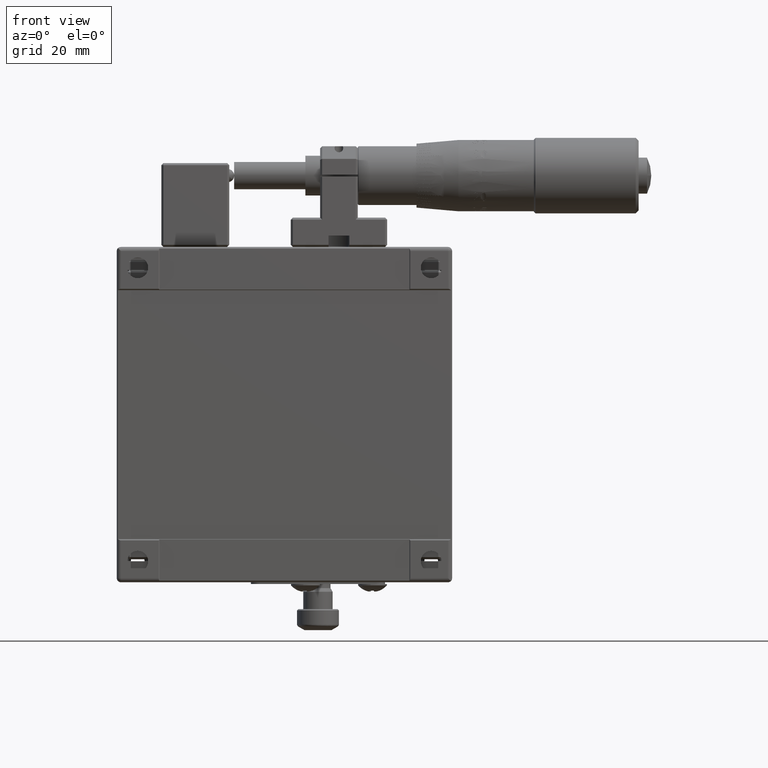
[diagram: clean part render]
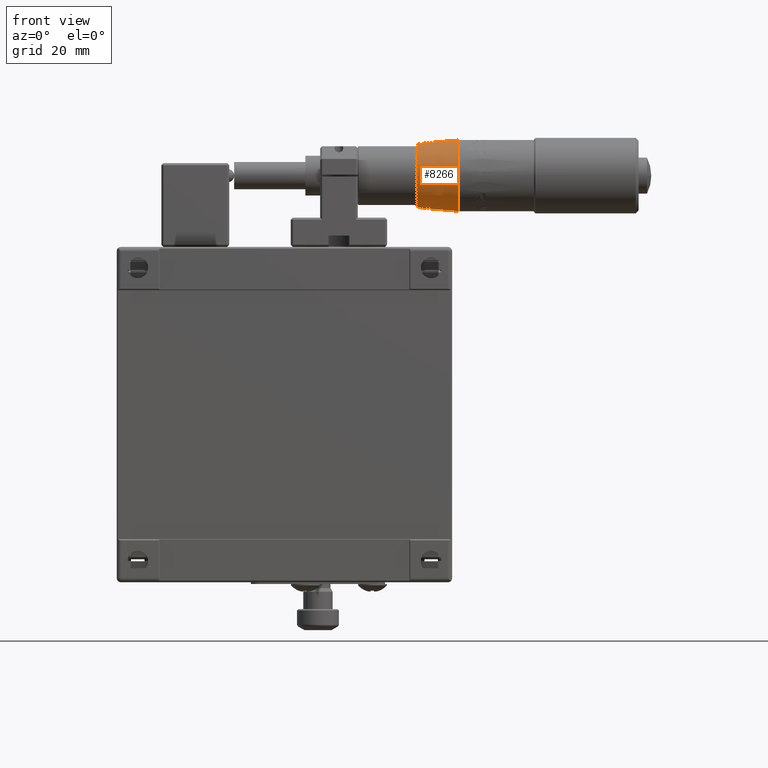
[diagram: same view with one face highlighted and labeled with its STEP entity id]
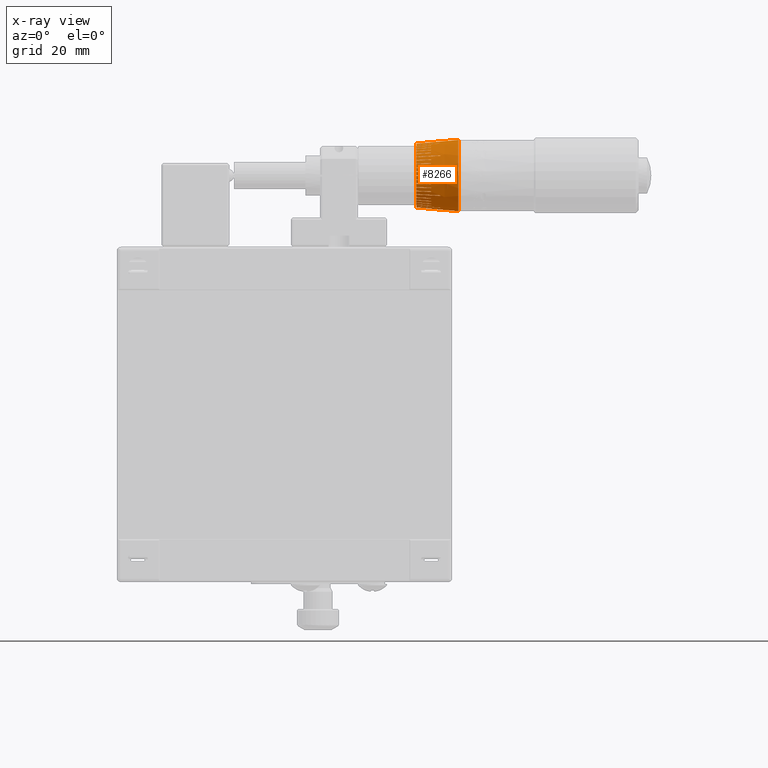
[diagram: x-ray of the same camera — body ghosted, the highlighted face saturated]
A machine part, front view. The second image highlights one B-rep face of the part: STEP entity #8266.
The next image is the same camera in x-ray: the body ghosted, the highlighted face saturated — about 0% of this face is hidden behind the body in this view.
In plain terms, the highlighted conical surface has half-angle 5 deg.
Its self-contained STEP definition (entity closure, byte-faithful):
#6 = ORIENTED_EDGE ( 'NONE', *, *, #55550, .F. ) ;
#76 = CIRCLE ( 'NONE', #5515, 7.625113364740747635 ) ;
#128 = CARTESIAN_POINT ( 'NONE',  ( 26.80988274706869845, -3.031142710643130123, 59.85341992282080525 ) ) ;
#132 = DIRECTION ( 'NONE',  ( -1.000000000000000000, 0.000000000000000000, 0.000000000000000000 ) ) ;
#208 = DIRECTION ( 'NONE',  ( 0.000000000000000000, 1.957526350271236043E-14, 1.000000000000000000 ) ) ;
#230 = B_SPLINE_CURVE_WITH_KNOTS ( 'NONE', 3,
 ( #30730, #41567, #21893, #31065 ),
 .UNSPECIFIED., .F., .F.,
 ( 4, 4 ),
 ( 2.007639978141285224E-07, 0.003513570747034499946 ),
 .UNSPECIFIED. ) ;
#234 = ORIENTED_EDGE ( 'NONE', *, *, #12241, .F. ) ;
#277 = AXIS2_PLACEMENT_3D ( 'NONE', #11388, #11728, #33073 ) ;
#318 = EDGE_CURVE ( 'NONE', #48219, #52053, #27868, .T. ) ;
#367 = VERTEX_POINT ( 'NONE', #46485 ) ;
#650 = B_SPLINE_CURVE_WITH_KNOTS ( 'NONE', 3,
 ( #20661, #1007, #51520, #5077 ),
 .UNSPECIFIED., .F., .F.,
 ( 4, 4 ),
 ( 2.007640002973089982E-07, 0.003513570747036984937 ),
 .UNSPECIFIED. ) ;
#660 = ORIENTED_EDGE ( 'NONE', *, *, #18280, .F. ) ;
#790 = EDGE_CURVE ( 'NONE', #12544, #20079, #76, .T. ) ;
#834 = DIRECTION ( 'NONE',  ( 0.000000000000000000, 0.000000000000000000, -1.000000000000000000 ) ) ;
#854 = CIRCLE ( 'NONE', #57165, 7.931323687081485829 ) ;
#862 = B_SPLINE_CURVE_WITH_KNOTS ( 'NONE', 3,
 ( #46299, #65617, #40857, #19173 ),
 .UNSPECIFIED., .F., .F.,
 ( 4, 4 ),
 ( 2.007640002971385064E-07, 0.003513570747036984937 ),
 .UNSPECIFIED. ) ;
#866 = CARTESIAN_POINT ( 'NONE',  ( 30.30988274706869845, -3.352668208135700212, 54.12683185788159790 ) ) ;
#875 = CARTESIAN_POINT ( 'NONE',  ( 29.29223279120009948, -3.802181730027174744, 56.95000000000000284 ) ) ;
#908 = VERTEX_POINT ( 'NONE', #40536 ) ;
#947 = CARTESIAN_POINT ( 'NONE',  ( 32.50988274706870129, -4.083691393580243911, 56.95000000000000284 ) ) ;
#1007 = CARTESIAN_POINT ( 'NONE',  ( 27.97654940637895038, -2.755378695788865073, 60.67870577538010224 ) ) ;
#1028 = ORIENTED_EDGE ( 'NONE', *, *, #25154, .F. ) ;
#1044 = ORIENTED_EDGE ( 'NONE', *, *, #35608, .T. ) ;
#1109 = DIRECTION ( 'NONE',  ( 0.000000000000000000, -7.283310331176776978E-14, 1.000000000000000000 ) ) ;
#1112 = EDGE_CURVE ( 'NONE', #53683, #13409, #42558, .T. ) ;
#1156 = CARTESIAN_POINT ( 'NONE',  ( 30.30988274706869845, 4.039949748743705271, 57.00000000000000000 ) ) ;
#1250 = VERTEX_POINT ( 'NONE', #56388 ) ;
#1293 = CARTESIAN_POINT ( 'NONE',  ( 26.80988274706869845, -2.099374659561770162, 61.52228367473040294 ) ) ;
#1381 = CARTESIAN_POINT ( 'NONE',  ( 26.80988274706869845, 3.611076549008624959, 64.61304286101800187 ) ) ;
#1587 = VERTEX_POINT ( 'NONE', #47426 ) ;
#1647 = ORIENTED_EDGE ( 'NONE', *, *, #13675, .T. ) ;
#1688 = ORIENTED_EDGE ( 'NONE', *, *, #8175, .T. ) ;
#1816 = DIRECTION ( 'NONE',  ( 1.000000000000000000, 0.000000000000000000, 0.000000000000000000 ) ) ;
#1938 = B_SPLINE_CURVE_WITH_KNOTS ( 'NONE', 3,
 ( #11072, #62247, #52434, #66649 ),
 .UNSPECIFIED., .F., .F.,
 ( 4, 4 ),
 ( 2.007639978140435015E-07, 0.003513570747034499946 ),
 .UNSPECIFIED. ) ;
#1946 = CIRCLE ( 'NONE', #37684, 7.625113364740747635 ) ;
#2024 = EDGE_CURVE ( 'NONE', #33389, #31634, #3992, .T. ) ;
#2133 = VERTEX_POINT ( 'NONE', #55390 ) ;
#2246 = VERTEX_POINT ( 'NONE', #57076 ) ;
#2268 = CARTESIAN_POINT ( 'NONE',  ( 27.97654940637895038, -1.558579322184104887, 62.32595879564090069 ) ) ;
#2276 = CARTESIAN_POINT ( 'NONE',  ( 30.30988274706869845, 2.504683059458250316, 64.78131426058800457 ) ) ;
#2311 = ORIENTED_EDGE ( 'NONE', *, *, #20042, .F. ) ;
#2356 = DIRECTION ( 'NONE',  ( 1.000000000000000000, 0.000000000000000000, 0.000000000000000000 ) ) ;
#2494 = ORIENTED_EDGE ( 'NONE', *, *, #29156, .F. ) ;
#2592 = EDGE_CURVE ( 'NONE', #5861, #50390, #43349, .T. ) ;
#2643 = VERTEX_POINT ( 'NONE', #48501 ) ;
#2651 = CARTESIAN_POINT ( 'NONE',  ( 26.80988274706869845, 1.636157967503560240, 49.76369300695510134 ) ) ;
#2657 = VERTEX_POINT ( 'NONE', #32927 ) ;
#2682 = DIRECTION ( 'NONE',  ( 1.000000000000000000, 0.000000000000000000, 0.000000000000000000 ) ) ;
#2693 = CARTESIAN_POINT ( 'NONE',  ( 27.97654940637895038, -2.755378695788920140, 53.32129422462000434 ) ) ;
#2746 = CARTESIAN_POINT ( 'NONE',  ( 27.97654940637895038, 0.7951852622954630467, 49.98709273707600431 ) ) ;
#2793 = CARTESIAN_POINT ( 'NONE',  ( 30.30988274706869845, -3.654478661303365072, 58.92397164010289856 ) ) ;
#2794 = B_SPLINE_CURVE_WITH_KNOTS ( 'NONE', 3,
 ( #46377, #20598, #41285, #9423 ),
 .UNSPECIFIED., .F., .F.,
 ( 4, 4 ),
 ( 2.007640002973749874E-07, 0.003513570747036984937 ),
 .UNSPECIFIED. ) ;
#2813 = ORIENTED_EDGE ( 'NONE', *, *, #60132, .F. ) ;
#2819 = CARTESIAN_POINT ( 'NONE',  ( 27.97654940637895038, -3.456747881160965097, 55.12679699533929778 ) ) ;
#3052 = AXIS2_PLACEMENT_3D ( 'NONE', #28121, #2356, #13178 ) ;
#3063 = CARTESIAN_POINT ( 'NONE',  ( 32.50988274706870129, 3.884234154406934980, 57.11313400155930253 ) ) ;
#3120 = ORIENTED_EDGE ( 'NONE', *, *, #56726, .T. ) ;
#3215 = CARTESIAN_POINT ( 'NONE',  ( 27.97654940637895038, -0.1426119370637830008, 50.50265111023710318 ) ) ;
#3228 = EDGE_CURVE ( 'NONE', #58667, #31945, #48495, .T. ) ;
#3294 = CIRCLE ( 'NONE', #45553, 7.931323687081485829 ) ;
#3356 = DIRECTION ( 'NONE',  ( 0.000000000000000000, -1.246692759390619511E-14, 1.000000000000000000 ) ) ;
#3467 = CARTESIAN_POINT ( 'NONE',  ( 26.80988274706869845, -3.067955165911639970, 54.23955772576820067 ) ) ;
#3644 = CARTESIAN_POINT ( 'NONE',  ( 26.80988274706869845, -3.333013380211859999, 58.94467697168699516 ) ) ;
#3774 = CARTESIAN_POINT ( 'NONE',  ( 27.97654940637895038, -0.1426119370636928230, 63.49734888976301050 ) ) ;
#3827 = EDGE_CURVE ( 'NONE', #11599, #56162, #49350, .T. ) ;
#3959 = CARTESIAN_POINT ( 'NONE',  ( 29.14321607332965058, 2.622038195624134538, 64.69978823384920474 ) ) ;
#3992 = CIRCLE ( 'NONE', #12650, 7.625113364740747635 ) ;
#4022 = B_SPLINE_CURVE_WITH_KNOTS ( 'NONE', 3,
 ( #11382, #58482, #52751, #47676 ),
 .UNSPECIFIED., .F., .F.,
 ( 4, 4 ),
 ( 2.007640002971639968E-07, 0.003513570747036984937 ),
 .UNSPECIFIED. ) ;
#4061 = CARTESIAN_POINT ( 'NONE',  ( 26.80988274706869845, 3.511273876165689867, 49.39323619093500639 ) ) ;
#4064 = VERTEX_POINT ( 'NONE', #53038 ) ;
#4101 = B_SPLINE_CURVE_WITH_KNOTS ( 'NONE', 3,
 ( #12167, #36619, #42366, #32550 ),
 .UNSPECIFIED., .F., .F.,
 ( 4, 4 ),
 ( 2.007640002970930048E-07, 0.003513570747036984937 ),
 .UNSPECIFIED. ) ;
#4120 = CIRCLE ( 'NONE', #3052, 7.625113364740747635 ) ;
#4126 = DIRECTION ( 'NONE',  ( -0.9961946980917455452, 0.02693260566639673476, -0.08289003707270474475 ) ) ;
#4131 = AXIS2_PLACEMENT_3D ( 'NONE', #46102, #45762, #46450 ) ;
#4138 = CARTESIAN_POINT ( 'NONE',  ( 26.80988274706869845, 4.039949748743705271, 57.00000000000000000 ) ) ;
#4146 = CIRCLE ( 'NONE', #12788, 8.500000000000000000 ) ;
#4226 = CARTESIAN_POINT ( 'NONE',  ( 26.80988274706869845, 4.039949748743705271, 57.00000000000000000 ) ) ;
#4530 = CARTESIAN_POINT ( 'NONE',  ( 29.14321607332965058, -2.796649891306569824, 53.18448989252339487 ) ) ;
#4631 = DIRECTION ( 'NONE',  ( -0.9961946980917455452, 0.02693260566639788661, 0.08289003707270445331 ) ) ;
#4634 = CARTESIAN_POINT ( 'NONE',  ( 26.80988274706869845, 3.511273876165800001, 64.60676380906508598 ) ) ;
#4689 = ORIENTED_EDGE ( 'NONE', *, *, #54107, .F. ) ;
#4741 = CARTESIAN_POINT ( 'NONE',  ( 30.30988274706869845, -3.834943382015894908, 57.94443295599800337 ) ) ;
#4784 = ORIENTED_EDGE ( 'NONE', *, *, #66509, .T. ) ;
#4826 = CARTESIAN_POINT ( 'NONE',  ( 32.50988274706870129, 3.884234154406934980, 56.88686599844069747 ) ) ;
#4844 = EDGE_CURVE ( 'NONE', #42229, #38940, #11421, .T. ) ;
#5055 = CARTESIAN_POINT ( 'NONE',  ( 26.80988274706869845, -0.7818502770508990452, 51.09300428843940267 ) ) ;
#5077 = CARTESIAN_POINT ( 'NONE',  ( 30.30988274706869845, -2.934271753652060166, 60.77705306618539538 ) ) ;
#5234 = CARTESIAN_POINT ( 'NONE',  ( 29.14321607332965058, -0.1128721717687266035, 50.36288601008670440 ) ) ;
#5310 = CARTESIAN_POINT ( 'NONE',  ( 30.30988274706869845, -3.315855752867235218, 54.03385420929280514 ) ) ;
#5394 = EDGE_CURVE ( 'NONE', #53683, #35838, #19615, .T. ) ;
#5427 = CARTESIAN_POINT ( 'NONE',  ( 30.30988274706869845, -2.405887659877689710, 61.62137160709639971 ) ) ;
#5458 = EDGE_CURVE ( 'NONE', #65519, #22618, #59674, .T. ) ;
#5515 = AXIS2_PLACEMENT_3D ( 'NONE', #59195, #33470, #60194 ) ;
#5559 = ORIENTED_EDGE ( 'NONE', *, *, #34715, .T. ) ;
#5631 = CARTESIAN_POINT ( 'NONE',  ( 30.30988274706869845, -3.891216333823209972, 56.95000000000000284 ) ) ;
#5650 = CARTESIAN_POINT ( 'NONE',  ( 26.80988274706869845, 4.039949748743705271, 57.00000000000000000 ) ) ;
#5651 = CARTESIAN_POINT ( 'NONE',  ( 27.97654940637895038, -3.126047136229145096, 54.10900475693100020 ) ) ;
#5820 = ORIENTED_EDGE ( 'NONE', *, *, #28373, .F. ) ;
#5861 = VERTEX_POINT ( 'NONE', #30628 ) ;
#5867 = CIRCLE ( 'NONE', #47002, 7.625113364740747635 ) ;
#5898 = DIRECTION ( 'NONE',  ( 0.000000000000000000, -0.9510565162951565288, -0.3090169943749382919 ) ) ;
#6167 = DIRECTION ( 'NONE',  ( 1.000000000000000000, 0.000000000000000000, 0.000000000000000000 ) ) ;
#6364 = LINE ( 'NONE', #947, #23827 ) ;
#6381 = EDGE_CURVE ( 'NONE', #56917, #49599, #10309, .T. ) ;
#6458 = EDGE_CURVE ( 'NONE', #2246, #1250, #46781, .T. ) ;
#6574 = CARTESIAN_POINT ( 'NONE',  ( 30.30988274706869845, 4.039949748743705271, 57.00000000000000000 ) ) ;
#6644 = CARTESIAN_POINT ( 'NONE',  ( 26.80988274706869845, 2.562062338178849874, 64.48052154778268630 ) ) ;
#6669 = ORIENTED_EDGE ( 'NONE', *, *, #12338, .T. ) ;
#6757 = DIRECTION ( 'NONE',  ( 0.000000000000000000, 0.000000000000000000, -1.000000000000000000 ) ) ;
#6823 = CARTESIAN_POINT ( 'NONE',  ( 27.97654940637890419, -3.632408770890610317, 57.91884688446069873 ) ) ;
#6926 = AXIS2_PLACEMENT_3D ( 'NONE', #10595, #57366, #22403 ) ;
#7065 = CARTESIAN_POINT ( 'NONE',  ( 26.80988274706869845, 0.7481628291742329351, 63.87797155426650164 ) ) ;
#7100 = CARTESIAN_POINT ( 'NONE',  ( 29.14321607332965058, -3.530744320091775190, 55.00455435185750019 ) ) ;
#7134 = AXIS2_PLACEMENT_3D ( 'NONE', #7695, #60207, #34487 ) ;
#7139 = DIRECTION ( 'NONE',  ( 0.000000000000000000, 0.000000000000000000, 1.000000000000000000 ) ) ;
#7146 = ORIENTED_EDGE ( 'NONE', *, *, #24620, .F. ) ;
#7208 = VERTEX_POINT ( 'NONE', #19700 ) ;
#7209 = EDGE_CURVE ( 'NONE', #8148, #41040, #65464, .T. ) ;
#7374 = ORIENTED_EDGE ( 'NONE', *, *, #19289, .F. ) ;
#7405 = ORIENTED_EDGE ( 'NONE', *, *, #19679, .T. ) ;
#7556 = DIRECTION ( 'NONE',  ( 1.000000000000000000, 0.000000000000000000, 0.000000000000000000 ) ) ;
#7668 = EDGE_CURVE ( 'NONE', #12801, #39988, #31107, .T. ) ;
#7695 = CARTESIAN_POINT ( 'NONE',  ( 26.80988274706869845, 4.039949748743705271, 57.00000000000000000 ) ) ;
#7857 = ORIENTED_EDGE ( 'NONE', *, *, #20810, .T. ) ;
#7963 = DIRECTION ( 'NONE',  ( 1.000000000000000000, 0.000000000000000000, 0.000000000000000000 ) ) ;
#8090 = EDGE_CURVE ( 'NONE', #53833, #47004, #65574, .T. ) ;
#8113 = EDGE_CURVE ( 'NONE', #59287, #11352, #30952, .T. ) ;
#8148 = VERTEX_POINT ( 'NONE', #14775 ) ;
#8175 = EDGE_CURVE ( 'NONE', #57840, #38843, #59088, .T. ) ;
#8266 = ADVANCED_FACE ( 'NONE', ( #17132 ), #27388, .T. ) ;
#8287 = AXIS2_PLACEMENT_3D ( 'NONE', #65705, #65040, #9096 ) ;
#8300 = CARTESIAN_POINT ( 'NONE',  ( 32.50988274706870129, -4.083691393580243911, 56.95000000000000284 ) ) ;
#8403 = EDGE_CURVE ( 'NONE', #11395, #61994, #40330, .T. ) ;
#8638 = CARTESIAN_POINT ( 'NONE',  ( 26.80988274706869845, -0.08791886301548129667, 50.58883360462380097 ) ) ;
#8776 = CARTESIAN_POINT ( 'NONE',  ( 26.80988274706869845, -2.099374659561770162, 61.52228367473040294 ) ) ;
#8838 = ORIENTED_EDGE ( 'NONE', *, *, #57273, .F. ) ;
#8905 = VERTEX_POINT ( 'NONE', #11480 ) ;
#9033 = B_SPLINE_CURVE_WITH_KNOTS ( 'NONE', 3,
 ( #27056, #28355, #11792, #12117 ),
 .UNSPECIFIED., .F., .F.,
 ( 4, 4 ),
 ( 2.007640002970290009E-07, 0.003513570747036984937 ),
 .UNSPECIFIED. ) ;
#9096 = DIRECTION ( 'NONE',  ( 0.000000000000000000, 7.108335908806163741E-15, 1.000000000000000000 ) ) ;
#9115 = VERTEX_POINT ( 'NONE', #62253 ) ;
#9213 = CARTESIAN_POINT ( 'NONE',  ( 29.14321607332965058, 2.523809470551159784, 49.31894989760949244 ) ) ;
#9265 = EDGE_CURVE ( 'NONE', #11395, #60574, #26179, .T. ) ;
#9336 = EDGE_CURVE ( 'NONE', #35122, #39307, #25220, .T. ) ;
#9423 = CARTESIAN_POINT ( 'NONE',  ( 30.30988274706869845, 3.492046373524735348, 64.91237621202910191 ) ) ;
#9697 = ORIENTED_EDGE ( 'NONE', *, *, #27366, .F. ) ;
#9716 = DIRECTION ( 'NONE',  ( 1.000000000000000000, 0.000000000000000000, 0.000000000000000000 ) ) ;
#9717 = CARTESIAN_POINT ( 'NONE',  ( 30.30988274706869845, 4.039949748743705271, 57.00000000000000000 ) ) ;
#9834 = DIRECTION ( 'NONE',  ( 0.000000000000000000, 0.000000000000000000, -1.000000000000000000 ) ) ;
#9853 = VERTEX_POINT ( 'NONE', #55798 ) ;
#9878 = CARTESIAN_POINT ( 'NONE',  ( 30.30988274706869845, -0.2519979499992870409, 63.66971366555679168 ) ) ;
#9885 = EDGE_CURVE ( 'NONE', #38940, #24405, #10052, .T. ) ;
#9897 = EDGE_CURVE ( 'NONE', #2246, #13989, #17677, .T. ) ;
#9913 = AXIS2_PLACEMENT_3D ( 'NONE', #3063, #44072, #48195 ) ;
#9933 = CARTESIAN_POINT ( 'NONE',  ( 29.14321607332965058, -1.701441474475194893, 51.67706482844879901 ) ) ;
#9945 = ORIENTED_EDGE ( 'NONE', *, *, #13213, .F. ) ;
#10028 = EDGE_CURVE ( 'NONE', #10861, #31634, #230, .T. ) ;
#10052 = LINE ( 'NONE', #14445, #64238 ) ;
#10055 = CARTESIAN_POINT ( 'NONE',  ( 26.80988274706869845, 4.039949748743705271, 57.00000000000000000 ) ) ;
#10063 = EDGE_CURVE ( 'NONE', #43803, #7208, #59996, .T. ) ;
#10086 = VERTEX_POINT ( 'NONE', #61899 ) ;
#10099 = AXIS2_PLACEMENT_3D ( 'NONE', #58502, #27655, #57836 ) ;
#10137 = CARTESIAN_POINT ( 'NONE',  ( 30.30988274706869845, 0.7082648254467009963, 49.80237740631430654 ) ) ;
#10151 = DIRECTION ( 'NONE',  ( -0.9961946980917455452, 0.02693260566639673476, -0.08289003707270474475 ) ) ;
#10309 = CIRCLE ( 'NONE', #36304, 7.931323687081485829 ) ;
#10312 = CARTESIAN_POINT ( 'NONE',  ( 26.80988274706869845, -0.003486070465281640007, 50.53525092512590078 ) ) ;
#10359 = VERTEX_POINT ( 'NONE', #58738 ) ;
#10420 = EDGE_CURVE ( 'NONE', #35122, #61994, #34939, .T. ) ;
#10510 = CARTESIAN_POINT ( 'NONE',  ( 29.14321607332965058, -2.323309566913289714, 61.56137511067620238 ) ) ;
#10572 = ORIENTED_EDGE ( 'NONE', *, *, #7209, .T. ) ;
#10582 = EDGE_CURVE ( 'NONE', #12428, #4064, #62004, .T. ) ;
#10595 = CARTESIAN_POINT ( 'NONE',  ( 26.80988274706869845, 4.039949748743705271, 57.00000000000000000 ) ) ;
#10608 = CARTESIAN_POINT ( 'NONE',  ( 26.80988274706869845, -1.552626527418884850, 51.81681136553459766 ) ) ;
#10697 = ORIENTED_EDGE ( 'NONE', *, *, #53008, .F. ) ;
#10729 = CARTESIAN_POINT ( 'NONE',  ( 32.50988274706870129, 1.482053753747303748, 49.28940900526820457 ) ) ;
#10730 = EDGE_CURVE ( 'NONE', #64194, #39254, #40552, .T. ) ;
#10822 = ORIENTED_EDGE ( 'NONE', *, *, #17759, .F. ) ;
#10861 = VERTEX_POINT ( 'NONE', #18632 ) ;
#11060 = ORIENTED_EDGE ( 'NONE', *, *, #37600, .T. ) ;
#11070 = CARTESIAN_POINT ( 'NONE',  ( 29.14321607332965058, -3.220951480618774898, 54.07142946883060119 ) ) ;
#11072 = CARTESIAN_POINT ( 'NONE',  ( 30.30988274706869845, 1.636637469835184877, 64.55843803436320627 ) ) ;
#11087 = CARTESIAN_POINT ( 'NONE',  ( 26.80988274706869845, -0.003486070465192305217, 63.46474907487420580 ) ) ;
#11273 = ORIENTED_EDGE ( 'NONE', *, *, #29867, .T. ) ;
#11352 = VERTEX_POINT ( 'NONE', #51347 ) ;
#11382 = CARTESIAN_POINT ( 'NONE',  ( 26.80988274706869845, -3.518608016842290187, 55.99473469698409644 ) ) ;
#11388 = CARTESIAN_POINT ( 'NONE',  ( 26.80988274706869845, 4.039949748743705271, 57.00000000000000000 ) ) ;
#11395 = VERTEX_POINT ( 'NONE', #26245 ) ;
#11421 = CIRCLE ( 'NONE', #34152, 7.931323687081487606 ) ;
#11480 = CARTESIAN_POINT ( 'NONE',  ( 26.80988274706869845, 4.039949748743705271, 49.37488663525930122 ) ) ;
#11504 = CARTESIAN_POINT ( 'NONE',  ( 26.80988274706869845, 4.039949748743705271, 57.00000000000000000 ) ) ;
#11505 = CARTESIAN_POINT ( 'NONE',  ( 30.30988274706869845, -3.891216333823209972, 56.95000000000000284 ) ) ;
#11599 = VERTEX_POINT ( 'NONE', #51600 ) ;
#11728 = DIRECTION ( 'NONE',  ( 1.000000000000000000, 0.000000000000000000, 0.000000000000000000 ) ) ;
#11742 = CARTESIAN_POINT ( 'NONE',  ( 26.80988274706869845, 1.731263619133074805, 49.73279130751760135 ) ) ;
#11748 = CIRCLE ( 'NONE', #17151, 7.625113364740747635 ) ;
#11752 = CARTESIAN_POINT ( 'NONE',  ( 27.97654940637895038, -0.05817914451349059934, 63.55093156926091069 ) ) ;
#11792 = CARTESIAN_POINT ( 'NONE',  ( 29.14321607332965058, -2.264531041684109791, 52.35772318988639995 ) ) ;
#11844 = CARTESIAN_POINT ( 'NONE',  ( 30.30988274706869845, -2.886096386241940426, 53.13531626581029599 ) ) ;
#11852 = DIRECTION ( 'NONE',  ( 1.000000000000000000, 0.000000000000000000, 0.000000000000000000 ) ) ;
#11948 = VERTEX_POINT ( 'NONE', #47457 ) ;
#11998 = CARTESIAN_POINT ( 'NONE',  ( 26.80988274706869845, 4.039949748743705271, 57.00000000000000000 ) ) ;
#12083 = CARTESIAN_POINT ( 'NONE',  ( 26.80988274706869845, -0.7818502770508160005, 62.90699571156068970 ) ) ;
#12090 = VERTEX_POINT ( 'NONE', #3644 ) ;
#12099 = VERTEX_POINT ( 'NONE', #15483 ) ;
#12117 = CARTESIAN_POINT ( 'NONE',  ( 30.30988274706869845, -2.347109134648509787, 52.29772669346619551 ) ) ;
#12167 = CARTESIAN_POINT ( 'NONE',  ( 26.80988274706869845, -1.484171816826020063, 51.74391450279250648 ) ) ;
#12241 = EDGE_CURVE ( 'NONE', #56917, #34045, #66239, .T. ) ;
#12268 = EDGE_CURVE ( 'NONE', #66828, #12099, #44392, .T. ) ;
#12328 = CARTESIAN_POINT ( 'NONE',  ( 27.97654940637895038, -0.9239649348500039716, 51.07809862756130315 ) ) ;
#12338 = EDGE_CURVE ( 'NONE', #10359, #58944, #49129, .T. ) ;
#12416 = CARTESIAN_POINT ( 'NONE',  ( 26.80988274706869845, 2.660291063251615462, 49.50074032075870178 ) ) ;
#12428 = VERTEX_POINT ( 'NONE', #38090 ) ;
#12433 = CARTESIAN_POINT ( 'NONE',  ( 30.30988274706869845, -1.707394149019869856, 62.46570521983210256 ) ) ;
#12495 = VERTEX_POINT ( 'NONE', #33339 ) ;
#12544 = VERTEX_POINT ( 'NONE', #61064 ) ;
#12650 = AXIS2_PLACEMENT_3D ( 'NONE', #38474, #29293, #59126 ) ;
#12660 = CARTESIAN_POINT ( 'NONE',  ( 30.30988274706869845, -3.654478661303394826, 55.07602835989720091 ) ) ;
#12677 = DIRECTION ( 'NONE',  ( 0.000000000000000000, 0.000000000000000000, -1.000000000000000000 ) ) ;
#12704 = VERTEX_POINT ( 'NONE', #55652 ) ;
#12788 = AXIS2_PLACEMENT_3D ( 'NONE', #54653, #7556, #27907 ) ;
#12801 = VERTEX_POINT ( 'NONE', #36338 ) ;
#12850 = CARTESIAN_POINT ( 'NONE',  ( 29.14321607332965058, -3.721142791585810183, 58.03085139522309532 ) ) ;
#13029 = AXIS2_PLACEMENT_3D ( 'NONE', #28145, #23357, #7139 ) ;
#13178 = DIRECTION ( 'NONE',  ( 0.000000000000000000, 0.000000000000000000, -1.000000000000000000 ) ) ;
#13213 = EDGE_CURVE ( 'NONE', #45513, #22618, #54897, .T. ) ;
#13225 = CARTESIAN_POINT ( 'NONE',  ( 26.80988274706869845, -3.584999682245850305, 56.95000000000000284 ) ) ;
#13409 = VERTEX_POINT ( 'NONE', #32699 ) ;
#13411 = ORIENTED_EDGE ( 'NONE', *, *, #31407, .F. ) ;
#13420 = CARTESIAN_POINT ( 'NONE',  ( 26.80988274706869845, -1.484171816825943901, 62.25608549720760720 ) ) ;
#13499 = ORIENTED_EDGE ( 'NONE', *, *, #790, .T. ) ;
#13557 = DIRECTION ( 'NONE',  ( -0.9961946980917455452, 0.08715574274765836016, -6.086052987529215479E-16 ) ) ;
#13604 = EDGE_CURVE ( 'NONE', #16157, #37043, #43618, .T. ) ;
#13622 = EDGE_CURVE ( 'NONE', #10359, #46335, #65347, .T. ) ;
#13625 = DIRECTION ( 'NONE',  ( 0.000000000000000000, 0.000000000000000000, 1.000000000000000000 ) ) ;
#13675 = EDGE_CURVE ( 'NONE', #65203, #39249, #32228, .T. ) ;
#13942 = EDGE_CURVE ( 'NONE', #63537, #8905, #1946, .T. ) ;
#13989 = VERTEX_POINT ( 'NONE', #4741 ) ;
#14014 = DIRECTION ( 'NONE',  ( 1.000000000000000000, 0.000000000000000000, 0.000000000000000000 ) ) ;
#14129 = EDGE_CURVE ( 'NONE', #2133, #32468, #650, .T. ) ;
#14216 = EDGE_CURVE ( 'NONE', #53532, #36174, #854, .T. ) ;
#14232 = CARTESIAN_POINT ( 'NONE',  ( 30.30988274706869845, -3.654478661303365072, 58.92397164010289856 ) ) ;
#14309 = CARTESIAN_POINT ( 'NONE',  ( 26.80988274706869845, -3.357882368928344796, 58.84781865557419422 ) ) ;
#14438 = CIRCLE ( 'NONE', #6926, 7.625113364740747635 ) ;
#14445 = CARTESIAN_POINT ( 'NONE',  ( 32.50988274706870129, 1.482053753747303748, 49.28940900526820457 ) ) ;
#14609 = CARTESIAN_POINT ( 'NONE',  ( 26.80988274706869845, 4.039949748743705271, 57.00000000000000000 ) ) ;
#14729 = ORIENTED_EDGE ( 'NONE', *, *, #18826, .F. ) ;
#14745 = ORIENTED_EDGE ( 'NONE', *, *, #48685, .T. ) ;
#14775 = CARTESIAN_POINT ( 'NONE',  ( 30.30988274706869845, -3.629609672586880276, 59.02082995621580608 ) ) ;
#14874 = ORIENTED_EDGE ( 'NONE', *, *, #46938, .F. ) ;
#14906 = ORIENTED_EDGE ( 'NONE', *, *, #10730, .F. ) ;
#14974 = CARTESIAN_POINT ( 'NONE',  ( 30.30988274706869845, 4.039949748743705271, 57.00000000000000000 ) ) ;
#15026 = EDGE_CURVE ( 'NONE', #11599, #30078, #16593, .T. ) ;
#15055 = CIRCLE ( 'NONE', #62706, 7.625113364740747635 ) ;
#15099 = DIRECTION ( 'NONE',  ( 1.000000000000000000, 0.000000000000000000, 0.000000000000000000 ) ) ;
#15217 = ORIENTED_EDGE ( 'NONE', *, *, #10420, .F. ) ;
#15334 = VERTEX_POINT ( 'NONE', #41940 ) ;
#15483 = CARTESIAN_POINT ( 'NONE',  ( 30.30988274706869845, -0.1675651574491794915, 50.27670365494540050 ) ) ;
#15496 = CARTESIAN_POINT ( 'NONE',  ( 26.80988274706869845, 4.039949748743705271, 57.00000000000000000 ) ) ;
#15598 = ORIENTED_EDGE ( 'NONE', *, *, #40556, .F. ) ;
#15771 = CARTESIAN_POINT ( 'NONE',  ( 28.27458284049854953, -3.713147067172830162, 56.95000000000000284 ) ) ;
#15892 = CARTESIAN_POINT ( 'NONE',  ( 32.50988274706870129, 1.577159405376930001, 64.74149269416939489 ) ) ;
#15913 = CARTESIAN_POINT ( 'NONE',  ( 36.80988274706869845, 4.039949748743709712, 65.50000000000000000 ) ) ;
#15995 = ORIENTED_EDGE ( 'NONE', *, *, #6458, .F. ) ;
#15997 = DIRECTION ( 'NONE',  ( 0.000000000000000000, 0.5877852522924688072, -0.8090169943749505599 ) ) ;
#16001 = CARTESIAN_POINT ( 'NONE',  ( 32.50988274706870129, -2.561603254214460001, 61.73450560865570225 ) ) ;
#16157 = VERTEX_POINT ( 'NONE', #64517 ) ;
#16271 = CARTESIAN_POINT ( 'NONE',  ( 30.30988274706869845, 0.6177821202001990697, 64.15504466452929933 ) ) ;
#16310 = DIRECTION ( 'NONE',  ( -0.9961946980917455452, 0.07051047704022696261, 0.05122886023966997243 ) ) ;
#16315 = LINE ( 'NONE', #26828, #59342 ) ;
#16320 = CARTESIAN_POINT ( 'NONE',  ( 26.80988274706869845, -3.031142710643174976, 54.14658007717929422 ) ) ;
#16357 = B_SPLINE_CURVE_WITH_KNOTS ( 'NONE', 3,
 ( #29736, #29406, #35512, #56167 ),
 .UNSPECIFIED., .F., .F.,
 ( 4, 4 ),
 ( 2.007639978136825066E-07, 0.003513570747034499946 ),
 .UNSPECIFIED. ) ;
#16576 = VERTEX_POINT ( 'NONE', #21779 ) ;
#16580 = CARTESIAN_POINT ( 'NONE',  ( 32.50988274706870129, 3.847474688986674884, 57.00000000000000000 ) ) ;
#16593 = LINE ( 'NONE', #15913, #39080 ) ;
#16691 = ORIENTED_EDGE ( 'NONE', *, *, #21776, .F. ) ;
#16720 = ORIENTED_EDGE ( 'NONE', *, *, #13604, .F. ) ;
#16753 = CARTESIAN_POINT ( 'NONE',  ( 29.14321607332965058, -0.9890282127060000539, 50.99945063499640696 ) ) ;
#16776 = B_SPLINE_CURVE_WITH_KNOTS ( 'NONE', 3,
 ( #34993, #24443, #65485, #61055 ),
 .UNSPECIFIED., .F., .F.,
 ( 4, 4 ),
 ( 2.007640002973749874E-07, 0.003513570747036984937 ),
 .UNSPECIFIED. ) ;
#16842 = VECTOR ( 'NONE', #32077, 999.9999999999998863 ) ;
#16926 = ORIENTED_EDGE ( 'NONE', *, *, #51945, .T. ) ;
#16939 = ORIENTED_EDGE ( 'NONE', *, *, #20997, .F. ) ;
#17061 = DIRECTION ( 'NONE',  ( 1.000000000000000000, 0.000000000000000000, 0.000000000000000000 ) ) ;
#17132 = FACE_OUTER_BOUND ( 'NONE', #23276, .T. ) ;
#17138 = ORIENTED_EDGE ( 'NONE', *, *, #6381, .T. ) ;
#17151 = AXIS2_PLACEMENT_3D ( 'NONE', #11504, #37287, #6757 ) ;
#17177 = CARTESIAN_POINT ( 'NONE',  ( 30.30988274706869845, 1.541531818205559956, 49.47246366507440030 ) ) ;
#17323 = CARTESIAN_POINT ( 'NONE',  ( 26.80988274706869845, 4.039949748743705271, 57.00000000000000000 ) ) ;
#17346 = ORIENTED_EDGE ( 'NONE', *, *, #19369, .T. ) ;
#17455 = CARTESIAN_POINT ( 'NONE',  ( 29.14321607332965058, 2.523809470551265033, 64.68105010239059993 ) ) ;
#17497 = CARTESIAN_POINT ( 'NONE',  ( 29.14321607332965058, -3.733676114942254820, 56.06836007490849738 ) ) ;
#17677 = CIRCLE ( 'NONE', #43668, 7.931323687081485829 ) ;
#17701 = B_SPLINE_CURVE_WITH_KNOTS ( 'NONE', 3,
 ( #65389, #39618, #55217, #8776 ),
 .UNSPECIFIED., .F., .F.,
 ( 4, 4 ),
 ( 2.007639978139745212E-07, 0.003513570747034499946 ),
 .UNSPECIFIED. ) ;
#17720 = CARTESIAN_POINT ( 'NONE',  ( 26.80988274706869845, 0.8386455344208350038, 63.92054948342300236 ) ) ;
#17729 = CARTESIAN_POINT ( 'NONE',  ( 26.80988274706869845, 4.039949748743705271, 57.00000000000000000 ) ) ;
#17752 = B_SPLINE_CURVE_WITH_KNOTS ( 'NONE', 3,
 ( #41915, #57519, #11752, #11087 ),
 .UNSPECIFIED., .F., .F.,
 ( 4, 4 ),
 ( 2.007639978100355004E-07, 0.003513570747034499946 ),
 .UNSPECIFIED. ) ;
#17759 = EDGE_CURVE ( 'NONE', #53833, #51332, #29294, .T. ) ;
#17791 = CARTESIAN_POINT ( 'NONE',  ( 29.14321607332965058, -0.1973049643189274671, 50.41646868958459748 ) ) ;
#17949 = CARTESIAN_POINT ( 'NONE',  ( 26.80988274706869845, -3.031142710643130123, 59.85341992282080525 ) ) ;
#18038 = CARTESIAN_POINT ( 'NONE',  ( 26.80988274706869845, 0.7481628291741369008, 50.12202844573349836 ) ) ;
#18079 = CARTESIAN_POINT ( 'NONE',  ( 26.80988274706869845, 4.039949748743705271, 57.00000000000000000 ) ) ;
#18147 = CIRCLE ( 'NONE', #4131, 7.931323687081485829 ) ;
#18232 = EDGE_CURVE ( 'NONE', #53532, #30225, #6364, .T. ) ;
#18269 = CARTESIAN_POINT ( 'NONE',  ( 30.30988274706869845, 4.039949748743705271, 57.00000000000000000 ) ) ;
#18280 = EDGE_CURVE ( 'NONE', #35838, #31908, #42955, .T. ) ;
#18370 = EDGE_CURVE ( 'NONE', #66495, #64666, #24883, .T. ) ;
#18384 = ORIENTED_EDGE ( 'NONE', *, *, #36932, .T. ) ;
#18389 = CARTESIAN_POINT ( 'NONE',  ( 30.30988274706869845, -0.9770401168268240122, 50.85706030324060123 ) ) ;
#18427 = DIRECTION ( 'NONE',  ( 0.000000000000000000, 0.000000000000000000, -1.000000000000000000 ) ) ;
#18609 = CARTESIAN_POINT ( 'NONE',  ( 30.30988274706869845, -3.822410058659464926, 58.04364442612939712 ) ) ;
#18632 = CARTESIAN_POINT ( 'NONE',  ( 30.30988274706869845, -2.886096386241885359, 60.86468373418979638 ) ) ;
#18826 = EDGE_CURVE ( 'NONE', #2643, #56162, #16357, .T. ) ;
#18872 = CARTESIAN_POINT ( 'NONE',  ( 27.97654940637895038, -3.431878892444450102, 58.97006132077380158 ) ) ;
#18873 = ORIENTED_EDGE ( 'NONE', *, *, #9885, .F. ) ;
#18965 = VERTEX_POINT ( 'NONE', #40578 ) ;
#18976 = CARTESIAN_POINT ( 'NONE',  ( 26.80988274706869845, 4.039949748743705271, 57.00000000000000000 ) ) ;
#18997 = B_SPLINE_CURVE_WITH_KNOTS ( 'NONE', 3,
 ( #30743, #51422, #32449, #52778 ),
 .UNSPECIFIED., .F., .F.,
 ( 4, 4 ),
 ( 2.007640002969924991E-07, 0.003513570747036984937 ),
 .UNSPECIFIED. ) ;
#19132 = DIRECTION ( 'NONE',  ( 0.000000000000000000, 0.000000000000000000, -1.000000000000000000 ) ) ;
#19136 = ORIENTED_EDGE ( 'NONE', *, *, #41798, .T. ) ;
#19173 = CARTESIAN_POINT ( 'NONE',  ( 30.30988274706869845, -3.352668208135660244, 59.87316814211850158 ) ) ;
#19186 = ORIENTED_EDGE ( 'NONE', *, *, #44310, .F. ) ;
#19289 = EDGE_CURVE ( 'NONE', #49140, #25057, #46122, .T. ) ;
#19369 = EDGE_CURVE ( 'NONE', #42229, #60574, #27260, .T. ) ;
#19400 = CARTESIAN_POINT ( 'NONE',  ( 27.97654940637895038, -3.456747881160934899, 58.87320300466089407 ) ) ;
#19424 = ORIENTED_EDGE ( 'NONE', *, *, #63549, .T. ) ;
#19515 = ORIENTED_EDGE ( 'NONE', *, *, #22279, .F. ) ;
#19517 = AXIS2_PLACEMENT_3D ( 'NONE', #34404, #132, #5898 ) ;
#19571 = VECTOR ( 'NONE', #21151, 999.9999999999998863 ) ;
#19572 = ORIENTED_EDGE ( 'NONE', *, *, #27726, .T. ) ;
#19615 = CIRCLE ( 'NONE', #9913, 7.931323687081487606 ) ;
#19622 = CARTESIAN_POINT ( 'NONE',  ( 26.80988274706869845, -2.665932056334205047, 53.37046793078320661 ) ) ;
#19679 = EDGE_CURVE ( 'NONE', #64194, #51774, #48818, .T. ) ;
#19700 = CARTESIAN_POINT ( 'NONE',  ( 30.30988274706869845, -3.315855752867235218, 54.03385420929280514 ) ) ;
#19759 = ORIENTED_EDGE ( 'NONE', *, *, #2592, .T. ) ;
#19774 = CARTESIAN_POINT ( 'NONE',  ( 26.80988274706869845, -1.484171816825943901, 62.25608549720760720 ) ) ;
#19913 = EDGE_CURVE ( 'NONE', #18965, #64666, #25806, .T. ) ;
#19955 = EDGE_CURVE ( 'NONE', #24405, #47004, #21015, .T. ) ;
#20015 = AXIS2_PLACEMENT_3D ( 'NONE', #50560, #23772, #65476 ) ;
#20042 = EDGE_CURVE ( 'NONE', #57840, #20079, #17752, .T. ) ;
#20079 = VERTEX_POINT ( 'NONE', #62613 ) ;
#20101 = B_SPLINE_CURVE_WITH_KNOTS ( 'NONE', 3,
 ( #52227, #46465, #36285, #26107 ),
 .UNSPECIFIED., .F., .F.,
 ( 4, 4 ),
 ( 2.007639978139745212E-07, 0.003513570747034499946 ),
 .UNSPECIFIED. ) ;
#20173 = AXIS2_PLACEMENT_3D ( 'NONE', #4138, #55653, #50923 ) ;
#20195 = CARTESIAN_POINT ( 'NONE',  ( 30.30988274706869845, -0.2519979499992870409, 63.66971366555679168 ) ) ;
#20382 = ORIENTED_EDGE ( 'NONE', *, *, #19955, .F. ) ;
#20391 = LINE ( 'NONE', #41406, #43098 ) ;
#20555 = CARTESIAN_POINT ( 'NONE',  ( 26.80988274706869845, 4.039949748743705271, 57.00000000000000000 ) ) ;
#20598 = CARTESIAN_POINT ( 'NONE',  ( 27.97654940637895038, 3.504864703339189980, 64.70863469396968526 ) ) ;
#20610 = CARTESIAN_POINT ( 'NONE',  ( 27.10791617924850172, -3.611074788069215113, 57.04999999999999716 ) ) ;
#20661 = CARTESIAN_POINT ( 'NONE',  ( 26.80988274706869845, -2.665932056334154865, 60.62953206921689997 ) ) ;
#20810 = EDGE_CURVE ( 'NONE', #2643, #37956, #56978, .T. ) ;
#20864 = CARTESIAN_POINT ( 'NONE',  ( 30.30988274706869845, -3.822410058659474696, 55.95635557387070236 ) ) ;
#20940 = CARTESIAN_POINT ( 'NONE',  ( 26.80988274706869845, -3.584999682245850305, 57.04999999999999716 ) ) ;
#20997 = EDGE_CURVE ( 'NONE', #33389, #13409, #55758, .T. ) ;
#21015 = B_SPLINE_CURVE_WITH_KNOTS ( 'NONE', 3,
 ( #29726, #50411, #24623, #66002 ),
 .UNSPECIFIED., .F., .F.,
 ( 4, 4 ),
 ( 2.007639978105875012E-07, 0.003513570747034499946 ),
 .UNSPECIFIED. ) ;
#21151 = DIRECTION ( 'NONE',  ( -0.9961946980917455452, 0.02693260566639788661, 0.08289003707270445331 ) ) ;
#21244 = VERTEX_POINT ( 'NONE', #24482 ) ;
#21284 = CARTESIAN_POINT ( 'NONE',  ( 30.30988274706869845, 3.492046373524735348, 64.91237621202910191 ) ) ;
#21286 = EDGE_CURVE ( 'NONE', #12801, #57856, #26697, .T. ) ;
#21513 = CARTESIAN_POINT ( 'NONE',  ( 30.30988274706869845, -0.2519979499993790228, 50.33028633444330069 ) ) ;
#21702 = CARTESIAN_POINT ( 'NONE',  ( 30.30988274706869845, 1.541531818205664983, 64.52753633492569918 ) ) ;
#21726 = AXIS2_PLACEMENT_3D ( 'NONE', #26887, #32664, #39048 ) ;
#21761 = DIRECTION ( 'NONE',  ( 0.000000000000000000, -8.617490301752703265E-14, 1.000000000000000000 ) ) ;
#21776 = EDGE_CURVE ( 'NONE', #45728, #11948, #20101, .T. ) ;
#21779 = CARTESIAN_POINT ( 'NONE',  ( 26.80988274706869845, -3.067955165911600446, 59.76044227423200539 ) ) ;
#21827 = DIRECTION ( 'NONE',  ( 0.000000000000000000, 1.957526350271236043E-14, 1.000000000000000000 ) ) ;
#21893 = CARTESIAN_POINT ( 'NONE',  ( 27.97654940637895038, -2.707203328378695151, 60.76633644338450324 ) ) ;
#22195 = CARTESIAN_POINT ( 'NONE',  ( 26.95889946309619845, -3.598037235870944706, 56.95000000000000284 ) ) ;
#22279 = EDGE_CURVE ( 'NONE', #65519, #39249, #45885, .T. ) ;
#22346 = CARTESIAN_POINT ( 'NONE',  ( 26.80988274706869845, -3.333013380211889753, 55.05532302831310432 ) ) ;
#22403 = DIRECTION ( 'NONE',  ( 0.000000000000000000, 0.000000000000000000, -1.000000000000000000 ) ) ;
#22415 = AXIS2_PLACEMENT_3D ( 'NONE', #15496, #24648, #61596 ) ;
#22457 = AXIS2_PLACEMENT_3D ( 'NONE', #55662, #6167, #21761 ) ;
#22473 = DIRECTION ( 'NONE',  ( 0.000000000000000000, 9.590785526189239811E-14, 1.000000000000000000 ) ) ;
#22478 = CIRCLE ( 'NONE', #53898, 7.625113364740747635 ) ;
#22531 = ORIENTED_EDGE ( 'NONE', *, *, #7668, .F. ) ;
#22618 = VERTEX_POINT ( 'NONE', #47873 ) ;
#22704 = CARTESIAN_POINT ( 'NONE',  ( 32.50988274706870129, -2.502824728985284963, 52.18459269190690009 ) ) ;
#22834 = ORIENTED_EDGE ( 'NONE', *, *, #49286, .T. ) ;
#22850 = AXIS2_PLACEMENT_3D ( 'NONE', #14974, #65843, #13625 ) ;
#22884 = DIRECTION ( 'NONE',  ( -1.000000000000000000, 0.000000000000000000, 0.000000000000000000 ) ) ;
#23260 = EDGE_CURVE ( 'NONE', #49140, #46335, #45268, .T. ) ;
#23276 = EDGE_LOOP ( 'NONE', ( #49396, #41129, #14729, #7857, #1028, #59600, #39754, #40546, #36236, #37627, #8838, #36528, #32371, #62815, #7374, #61218, #34032, #6669, #15598, #13499, #2311, #1688, #51562, #19572, #234, #17138, #43993, #39753, #44620, #30703, #19186, #1044, #34287, #660, #45947, #40723, #16939, #61897, #46093, #24003, #63039, #11060, #14906, #7405, #2813, #3120, #30189, #10572, #10697, #4784, #15995, #42082, #2494, #19424, #59721, #4689, #51353, #31099, #29894, #11273, #7146, #50188, #51816, #63644, #42173, #19136, #13411, #37757, #24708, #57883, #56394, #18384, #22531, #46002, #6, #61339, #16691, #5820, #66683, #59116, #9697, #22834, #33679, #19759, #14874, #14745, #23740, #1647, #19515, #51065, #9945, #5559, #60043, #31368, #16720, #16926, #10822, #66752, #20382, #18873, #50465, #17346, #37960, #33707, #15217, #47069, #32405, #48420, #64021, #44659, #63946, #38036, #52041, #47044 ) ) ;
#23310 = DIRECTION ( 'NONE',  ( 0.000000000000000000, 0.000000000000000000, -1.000000000000000000 ) ) ;
#23357 = DIRECTION ( 'NONE',  ( 1.000000000000000000, 0.000000000000000000, 0.000000000000000000 ) ) ;
#23405 = CARTESIAN_POINT ( 'NONE',  ( 29.14321607332965058, 0.7517250273530190485, 49.89473503659250042 ) ) ;
#23498 = CIRCLE ( 'NONE', #61411, 7.625113364740747635 ) ;
#23740 = ORIENTED_EDGE ( 'NONE', *, *, #45563, .F. ) ;
#23744 = CARTESIAN_POINT ( 'NONE',  ( 26.80988274706869845, 4.039949748743705271, 57.00000000000000000 ) ) ;
#23772 = DIRECTION ( 'NONE',  ( 1.000000000000000000, 0.000000000000000000, 0.000000000000000000 ) ) ;
#23804 = CARTESIAN_POINT ( 'NONE',  ( 29.14321607332965058, -0.9119768884284219501, 50.93570823602160402 ) ) ;
#23805 = CARTESIAN_POINT ( 'NONE',  ( 30.30988274706869845, 0.7082648254468019156, 64.19762259368579294 ) ) ;
#23823 = CARTESIAN_POINT ( 'NONE',  ( 26.80988274706869845, -1.552626527418884850, 51.81681136553459766 ) ) ;
#23827 = VECTOR ( 'NONE', #42298, 1000.000000000000114 ) ;
#24003 = ORIENTED_EDGE ( 'NONE', *, *, #52385, .T. ) ;
#24054 = CIRCLE ( 'NONE', #66309, 7.625113364740747635 ) ;
#24135 = CARTESIAN_POINT ( 'NONE',  ( 26.80988274706869845, -0.7818502770508990452, 51.09300428843940267 ) ) ;
#24172 = EDGE_CURVE ( 'NONE', #15334, #52053, #54922, .T. ) ;
#24405 = VERTEX_POINT ( 'NONE', #17177 ) ;
#24443 = CARTESIAN_POINT ( 'NONE',  ( 27.97654940637895038, 3.604667376181910132, 49.28508625407740595 ) ) ;
#24458 = CARTESIAN_POINT ( 'NONE',  ( 26.80988274706869845, -3.357882368928344796, 58.84781865557419422 ) ) ;
#24482 = CARTESIAN_POINT ( 'NONE',  ( 26.80988274706869845, -0.08791886301539379722, 63.41116639537630562 ) ) ;
#24620 = EDGE_CURVE ( 'NONE', #65091, #367, #64403, .T. ) ;
#24623 = CARTESIAN_POINT ( 'NONE',  ( 27.97654940637895038, 1.604615891754630042, 49.66661647969430504 ) ) ;
#24648 = DIRECTION ( 'NONE',  ( 1.000000000000000000, 0.000000000000000000, 0.000000000000000000 ) ) ;
#24708 = ORIENTED_EDGE ( 'NONE', *, *, #318, .F. ) ;
#24792 = CARTESIAN_POINT ( 'NONE',  ( 30.30988274706869845, 4.039949748743705271, 57.00000000000000000 ) ) ;
#24883 = CIRCLE ( 'NONE', #50902, 7.625113364740747635 ) ;
#25005 = AXIS2_PLACEMENT_3D ( 'NONE', #65049, #54857, #35208 ) ;
#25057 = VERTEX_POINT ( 'NONE', #21702 ) ;
#25096 = CARTESIAN_POINT ( 'NONE',  ( 30.30988274706869845, -3.352668208135700212, 54.12683185788159790 ) ) ;
#25154 = EDGE_CURVE ( 'NONE', #66495, #37956, #2794, .T. ) ;
#25185 = CARTESIAN_POINT ( 'NONE',  ( 26.80988274706869845, -2.617756688924035124, 53.28283726277890509 ) ) ;
#25220 = CIRCLE ( 'NONE', #10099, 7.931323687081485829 ) ;
#25284 = DIRECTION ( 'NONE',  ( 1.000000000000000000, 0.000000000000000000, 0.000000000000000000 ) ) ;
#25403 = DIRECTION ( 'NONE',  ( 0.000000000000000000, 0.000000000000000000, 1.000000000000000000 ) ) ;
#25454 = CARTESIAN_POINT ( 'NONE',  ( 26.80988274706869845, 3.611076549008514824, 49.38695713898199813 ) ) ;
#25631 = CARTESIAN_POINT ( 'NONE',  ( 30.30988274706869845, -1.775848859612739972, 62.39280835708999717 ) ) ;
#25806 = B_SPLINE_CURVE_WITH_KNOTS ( 'NONE', 3,
 ( #56158, #3959, #61577, #31084 ),
 .UNSPECIFIED., .F., .F.,
 ( 4, 4 ),
 ( 2.007639978140130083E-07, 0.003513570747034499946 ),
 .UNSPECIFIED. ) ;
#25897 = CARTESIAN_POINT ( 'NONE',  ( 27.97654940637895038, -0.05817914451358319888, 50.44906843073920300 ) ) ;
#25990 = CARTESIAN_POINT ( 'NONE',  ( 27.97654940637895038, -1.627034032776975003, 62.25306193289879531 ) ) ;
#26107 = CARTESIAN_POINT ( 'NONE',  ( 26.80988274706869845, -2.158153184791079759, 52.55861802470720079 ) ) ;
#26134 = EDGE_CURVE ( 'NONE', #9853, #61467, #39657, .T. ) ;
#26179 = B_SPLINE_CURVE_WITH_KNOTS ( 'NONE', 3,
 ( #11742, #43248, #52773, #38165 ),
 .UNSPECIFIED., .F., .F.,
 ( 4, 4 ),
 ( 2.007640002939495067E-07, 0.003513570747036984937 ),
 .UNSPECIFIED. ) ;
#26245 = CARTESIAN_POINT ( 'NONE',  ( 26.80988274706869845, 1.731263619133074805, 49.73279130751760135 ) ) ;
#26382 = CARTESIAN_POINT ( 'NONE',  ( 30.30988274706869845, -3.315855752867189921, 59.96614579070730144 ) ) ;
#26697 = CIRCLE ( 'NONE', #48372, 7.931323687081485829 ) ;
#26718 = CARTESIAN_POINT ( 'NONE',  ( 30.30988274706869845, -3.629609672586910030, 54.97917004378430050 ) ) ;
#26769 = CARTESIAN_POINT ( 'NONE',  ( 30.30988274706869845, -0.1675651574490844842, 63.72329634505469187 ) ) ;
#26828 = CARTESIAN_POINT ( 'NONE',  ( 32.50988274706870129, -2.561603254214530168, 52.26549439134439723 ) ) ;
#26862 = CARTESIAN_POINT ( 'NONE',  ( 26.80988274706869845, 1.731263619133174947, 64.26720869248239865 ) ) ;
#26887 = CARTESIAN_POINT ( 'NONE',  ( 30.30988274706869845, 4.039949748743705271, 57.00000000000000000 ) ) ;
#26927 = CARTESIAN_POINT ( 'NONE',  ( 29.14321607332965058, 1.573073842991915106, 64.43045996451179747 ) ) ;
#27056 = CARTESIAN_POINT ( 'NONE',  ( 26.80988274706869845, -2.099374659561834999, 52.47771632526979602 ) ) ;
#27077 = CARTESIAN_POINT ( 'NONE',  ( 26.80988274706869845, -3.357882368928370109, 55.15218134442599762 ) ) ;
#27223 = CARTESIAN_POINT ( 'NONE',  ( 30.30988274706869845, -2.347109134648509787, 52.29772669346619551 ) ) ;
#27260 = LINE ( 'NONE', #46942, #19571 ) ;
#27285 = VERTEX_POINT ( 'NONE', #41626 ) ;
#27321 = CARTESIAN_POINT ( 'NONE',  ( 27.97654940637895038, 2.542935896183155187, 64.58078586797770981 ) ) ;
#27366 = EDGE_CURVE ( 'NONE', #42551, #31945, #9033, .T. ) ;
#27388 = CONICAL_SURFACE ( 'NONE', #36053, 8.500000000000000000, 0.08726646259971625186 ) ;
#27655 = DIRECTION ( 'NONE',  ( 1.000000000000000000, 0.000000000000000000, 0.000000000000000000 ) ) ;
#27679 = DIRECTION ( 'NONE',  ( 1.000000000000000000, 0.000000000000000000, 0.000000000000000000 ) ) ;
#27726 = EDGE_CURVE ( 'NONE', #21244, #34045, #22478, .T. ) ;
#27830 = CARTESIAN_POINT ( 'NONE',  ( 29.14321607332965058, 3.498455535995899979, 49.18949450828230141 ) ) ;
#27868 = B_SPLINE_CURVE_WITH_KNOTS ( 'NONE', 3,
 ( #25096, #35298, #50889, #35640 ),
 .UNSPECIFIED., .F., .F.,
 ( 4, 4 ),
 ( 2.007639978140805062E-07, 0.003513570747034499946 ),
 .UNSPECIFIED. ) ;
#27907 = DIRECTION ( 'NONE',  ( 0.000000000000000000, 0.000000000000000000, -1.000000000000000000 ) ) ;
#27913 = CARTESIAN_POINT ( 'NONE',  ( 27.97654940637895038, 0.7047025570488599788, 50.02967066623249792 ) ) ;
#27962 = VERTEX_POINT ( 'NONE', #55702 ) ;
#28121 = CARTESIAN_POINT ( 'NONE',  ( 26.80988274706869845, 4.039949748743705271, 57.00000000000000000 ) ) ;
#28145 = CARTESIAN_POINT ( 'NONE',  ( 30.30988274706869845, 4.039949748743705271, 57.00000000000000000 ) ) ;
#28149 = CARTESIAN_POINT ( 'NONE',  ( 29.14321607332965058, -3.220951480618729601, 59.92857053116960486 ) ) ;
#28355 = CARTESIAN_POINT ( 'NONE',  ( 27.97654940637895038, -2.181952885948250209, 52.41771973191279699 ) ) ;
#28373 = EDGE_CURVE ( 'NONE', #42118, #45728, #16315, .T. ) ;
#28514 = CARTESIAN_POINT ( 'NONE',  ( 26.80988274706869845, 0.8386455344207379703, 50.07945051657699054 ) ) ;
#28554 = AXIS2_PLACEMENT_3D ( 'NONE', #1156, #17061, #21827 ) ;
#28845 = EDGE_CURVE ( 'NONE', #30078, #2657, #4146, .T. ) ;
#28999 = B_SPLINE_CURVE_WITH_KNOTS ( 'NONE', 3,
 ( #57479, #22195, #47989, #42884, #15771, #875, #5631 ),
 .UNSPECIFIED., .F., .F.,
 ( 4, 3, 4 ),
 ( 0.005922282279034479617, 0.006371040159345599772, 0.009435652262071150473 ),
 .UNSPECIFIED. ) ;
#29155 = CARTESIAN_POINT ( 'NONE',  ( 30.30988274706869845, 1.636637469835074965, 49.44156196563690031 ) ) ;
#29156 = EDGE_CURVE ( 'NONE', #41067, #13989, #40362, .T. ) ;
#29159 = CARTESIAN_POINT ( 'NONE',  ( 26.80988274706869845, -3.531141340198705514, 57.90605383288460217 ) ) ;
#29293 = DIRECTION ( 'NONE',  ( 1.000000000000000000, 0.000000000000000000, 0.000000000000000000 ) ) ;
#29294 = B_SPLINE_CURVE_WITH_KNOTS ( 'NONE', 3,
 ( #28514, #2746, #23405, #56620 ),
 .UNSPECIFIED., .F., .F.,
 ( 4, 4 ),
 ( 2.007640002971539912E-07, 0.003513570747036984937 ),
 .UNSPECIFIED. ) ;
#29373 = DIRECTION ( 'NONE',  ( 1.000000000000000000, 0.000000000000000000, 0.000000000000000000 ) ) ;
#29406 = CARTESIAN_POINT ( 'NONE',  ( 29.14321607332965058, 3.598258208838839955, 64.81678454367070685 ) ) ;
#29560 = CARTESIAN_POINT ( 'NONE',  ( 30.30988274706869845, 2.602911784531010131, 49.19994760795350430 ) ) ;
#29726 = CARTESIAN_POINT ( 'NONE',  ( 30.30988274706869845, 1.541531818205559956, 49.47246366507440030 ) ) ;
#29736 = CARTESIAN_POINT ( 'NONE',  ( 30.30988274706869845, 3.591849046367560305, 64.91865526398198938 ) ) ;
#29867 = EDGE_CURVE ( 'NONE', #46523, #367, #14438, .T. ) ;
#29894 = ORIENTED_EDGE ( 'NONE', *, *, #49364, .F. ) ;
#30078 = VERTEX_POINT ( 'NONE', #61327 ) ;
#30175 = CARTESIAN_POINT ( 'NONE',  ( 30.30988274706869845, 4.039949748743705271, 57.00000000000000000 ) ) ;
#30189 = ORIENTED_EDGE ( 'NONE', *, *, #65754, .F. ) ;
#30225 = VERTEX_POINT ( 'NONE', #11505 ) ;
#30299 = B_SPLINE_CURVE_WITH_KNOTS ( 'NONE', 3,
 ( #31437, #25990, #35499, #25631 ),
 .UNSPECIFIED., .F., .F.,
 ( 4, 4 ),
 ( 2.007640002970930048E-07, 0.003513570747036984937 ),
 .UNSPECIFIED. ) ;
#30394 = DIRECTION ( 'NONE',  ( 0.000000000000000000, 0.000000000000000000, -1.000000000000000000 ) ) ;
#30528 = CARTESIAN_POINT ( 'NONE',  ( 30.30988274706869845, 4.039949748743705271, 57.00000000000000000 ) ) ;
#30628 = CARTESIAN_POINT ( 'NONE',  ( 30.30988274706869845, -1.775848859612815023, 51.60719164291020178 ) ) ;
#30703 = ORIENTED_EDGE ( 'NONE', *, *, #26134, .T. ) ;
#30730 = CARTESIAN_POINT ( 'NONE',  ( 30.30988274706869845, -2.886096386241885359, 60.86468373418979638 ) ) ;
#30733 = DIRECTION ( 'NONE',  ( 1.000000000000000000, 0.000000000000000000, 0.000000000000000000 ) ) ;
#30743 = CARTESIAN_POINT ( 'NONE',  ( 26.80988274706869845, -0.8589016013283969908, 62.84325331258579439 ) ) ;
#30781 = CARTESIAN_POINT ( 'NONE',  ( 26.80988274706869845, -2.617756688923984942, 60.71716273722130097 ) ) ;
#30808 = CARTESIAN_POINT ( 'NONE',  ( 30.30988274706869845, -0.9770401168267379699, 63.14293969675950535 ) ) ;
#30837 = EDGE_CURVE ( 'NONE', #58303, #25057, #55314, .T. ) ;
#30842 = CARTESIAN_POINT ( 'NONE',  ( 26.80988274706869845, -2.158153184791014922, 61.44138197529289869 ) ) ;
#30873 = EDGE_CURVE ( 'NONE', #63537, #4064, #16776, .T. ) ;
#30952 = CIRCLE ( 'NONE', #45014, 7.625113364740747635 ) ;
#31065 = CARTESIAN_POINT ( 'NONE',  ( 26.80988274706869845, -2.617756688923984942, 60.71716273722130097 ) ) ;
#31084 = CARTESIAN_POINT ( 'NONE',  ( 26.80988274706869845, 2.660291063251720267, 64.49925967924129111 ) ) ;
#31094 = CARTESIAN_POINT ( 'NONE',  ( 30.30988274706869845, -0.9770401168267379699, 63.14293969675950535 ) ) ;
#31099 = ORIENTED_EDGE ( 'NONE', *, *, #18232, .T. ) ;
#31107 = B_SPLINE_CURVE_WITH_KNOTS ( 'NONE', 3,
 ( #44721, #66064, #2693, #19622 ),
 .UNSPECIFIED., .F., .F.,
 ( 4, 4 ),
 ( 2.007639978106725221E-07, 0.003513570747034499946 ),
 .UNSPECIFIED. ) ;
#31128 = CARTESIAN_POINT ( 'NONE',  ( 28.27458284049854953, -3.713147067172824833, 57.04999999999999716 ) ) ;
#31201 = CIRCLE ( 'NONE', #41975, 7.625113364740747635 ) ;
#31249 = AXIS2_PLACEMENT_3D ( 'NONE', #42792, #59359, #49202 ) ;
#31368 = ORIENTED_EDGE ( 'NONE', *, *, #44862, .T. ) ;
#31388 = CARTESIAN_POINT ( 'NONE',  ( 30.30988274706869845, 1.636637469835184877, 64.55843803436320627 ) ) ;
#31407 = EDGE_CURVE ( 'NONE', #15334, #64118, #49912, .T. ) ;
#31437 = CARTESIAN_POINT ( 'NONE',  ( 26.80988274706869845, -1.552626527418814906, 62.18318863446550182 ) ) ;
#31546 = CIRCLE ( 'NONE', #25005, 7.931323687081485829 ) ;
#31634 = VERTEX_POINT ( 'NONE', #30781 ) ;
#31908 = VERTEX_POINT ( 'NONE', #52328 ) ;
#31945 = VERTEX_POINT ( 'NONE', #27223 ) ;
#31971 = DIRECTION ( 'NONE',  ( 1.000000000000000000, 0.000000000000000000, 0.000000000000000000 ) ) ;
#32038 = DIRECTION ( 'NONE',  ( 0.000000000000000000, 0.000000000000000000, -1.000000000000000000 ) ) ;
#32070 = AXIS2_PLACEMENT_3D ( 'NONE', #20555, #41233, #50399 ) ;
#32073 = DIRECTION ( 'NONE',  ( 1.000000000000000000, 0.000000000000000000, 0.000000000000000000 ) ) ;
#32077 = DIRECTION ( 'NONE',  ( -0.9961946980917455452, 0.07051047704022657403, -0.05122886023967116592 ) ) ;
#32191 = CARTESIAN_POINT ( 'NONE',  ( 30.30988274706869845, 0.6177821202001990697, 64.15504466452929933 ) ) ;
#32228 = CIRCLE ( 'NONE', #22457, 7.931323687081485829 ) ;
#32371 = ORIENTED_EDGE ( 'NONE', *, *, #62950, .F. ) ;
#32405 = ORIENTED_EDGE ( 'NONE', *, *, #65503, .F. ) ;
#32432 = CARTESIAN_POINT ( 'NONE',  ( 36.80988274706869845, 4.039949748743705271, 57.00000000000000000 ) ) ;
#32449 = CARTESIAN_POINT ( 'NONE',  ( 29.14321607332965058, -0.9890282127059150108, 63.00054936500369962 ) ) ;
#32468 = VERTEX_POINT ( 'NONE', #38960 ) ;
#32469 = AXIS2_PLACEMENT_3D ( 'NONE', #4826, #62109, #15997 ) ;
#32550 = CARTESIAN_POINT ( 'NONE',  ( 30.30988274706869845, -1.707394149019950014, 51.53429478016799692 ) ) ;
#32664 = DIRECTION ( 'NONE',  ( 1.000000000000000000, 0.000000000000000000, 0.000000000000000000 ) ) ;
#32699 = CARTESIAN_POINT ( 'NONE',  ( 30.30988274706869845, -2.405887659877689710, 61.62137160709639971 ) ) ;
#32700 = DIRECTION ( 'NONE',  ( 1.000000000000000000, 0.000000000000000000, 0.000000000000000000 ) ) ;
#32927 = CARTESIAN_POINT ( 'NONE',  ( 36.80988274706869845, 4.039949748743705271, 48.50000000000000000 ) ) ;
#33073 = DIRECTION ( 'NONE',  ( 0.000000000000000000, 0.000000000000000000, -1.000000000000000000 ) ) ;
#33339 = CARTESIAN_POINT ( 'NONE',  ( 26.80988274706869845, -0.8589016013283969908, 62.84325331258579439 ) ) ;
#33360 = VERTEX_POINT ( 'NONE', #19774 ) ;
#33389 = VERTEX_POINT ( 'NONE', #41804 ) ;
#33442 = CARTESIAN_POINT ( 'NONE',  ( 26.80988274706869845, -3.531141340198720169, 56.09394616711559678 ) ) ;
#33470 = DIRECTION ( 'NONE',  ( 1.000000000000000000, 0.000000000000000000, 0.000000000000000000 ) ) ;
#33612 = DIRECTION ( 'NONE',  ( 0.000000000000000000, 0.000000000000000000, -1.000000000000000000 ) ) ;
#33679 = ORIENTED_EDGE ( 'NONE', *, *, #45701, .F. ) ;
#33707 = ORIENTED_EDGE ( 'NONE', *, *, #8403, .T. ) ;
#33785 = DIRECTION ( 'NONE',  ( 0.000000000000000000, 0.000000000000000000, -1.000000000000000000 ) ) ;
#34032 = ORIENTED_EDGE ( 'NONE', *, *, #13622, .F. ) ;
#34033 = VERTEX_POINT ( 'NONE', #2276 ) ;
#34045 = VERTEX_POINT ( 'NONE', #38231 ) ;
#34118 = B_SPLINE_CURVE_WITH_KNOTS ( 'NONE', 3,
 ( #61774, #9933, #36717, #10608 ),
 .UNSPECIFIED., .F., .F.,
 ( 4, 4 ),
 ( 2.007639978106110063E-07, 0.003513570747034499946 ),
 .UNSPECIFIED. ) ;
#34152 = AXIS2_PLACEMENT_3D ( 'NONE', #43901, #22884, #34422 ) ;
#34212 = CARTESIAN_POINT ( 'NONE',  ( 26.80988274706869845, -3.518608016842274644, 58.00526530301599593 ) ) ;
#34287 = ORIENTED_EDGE ( 'NONE', *, *, #61514, .F. ) ;
#34289 = CARTESIAN_POINT ( 'NONE',  ( 26.95889946309619845, -3.598037235870944706, 57.04999999999999716 ) ) ;
#34404 = CARTESIAN_POINT ( 'NONE',  ( 32.50988274706870129, 3.980471684285455058, 57.18305465980620284 ) ) ;
#34422 = DIRECTION ( 'NONE',  ( 0.000000000000000000, 0.9510565162951521989, -0.3090169943749516146 ) ) ;
#34487 = DIRECTION ( 'NONE',  ( 0.000000000000000000, 0.000000000000000000, -1.000000000000000000 ) ) ;
#34666 = CARTESIAN_POINT ( 'NONE',  ( 27.97654940637895038, 2.542935896183049937, 49.41921413202239677 ) ) ;
#34703 = EDGE_CURVE ( 'NONE', #60158, #51438, #53728, .T. ) ;
#34715 = EDGE_CURVE ( 'NONE', #45513, #12099, #42943, .T. ) ;
#34939 = B_SPLINE_CURVE_WITH_KNOTS ( 'NONE', 3,
 ( #34997, #9213, #34666, #60400 ),
 .UNSPECIFIED., .F., .F.,
 ( 4, 4 ),
 ( 2.007639978140130083E-07, 0.003513570747034499946 ),
 .UNSPECIFIED. ) ;
#34954 = DIRECTION ( 'NONE',  ( 1.000000000000000000, 0.000000000000000000, 0.000000000000000000 ) ) ;
#34993 = CARTESIAN_POINT ( 'NONE',  ( 26.80988274706869845, 3.611076549008514824, 49.38695713898199813 ) ) ;
#34997 = CARTESIAN_POINT ( 'NONE',  ( 30.30988274706869845, 2.504683059458140182, 49.21868573941200253 ) ) ;
#35067 = EDGE_CURVE ( 'NONE', #9115, #42945, #61660, .T. ) ;
#35068 = CARTESIAN_POINT ( 'NONE',  ( 30.30988274706869845, -0.9770401168268240122, 50.85706030324060123 ) ) ;
#35122 = VERTEX_POINT ( 'NONE', #47451 ) ;
#35208 = DIRECTION ( 'NONE',  ( 0.000000000000000000, -1.870039139085929267E-14, 1.000000000000000000 ) ) ;
#35267 = DIRECTION ( 'NONE',  ( 1.000000000000000000, 0.000000000000000000, 0.000000000000000000 ) ) ;
#35298 = CARTESIAN_POINT ( 'NONE',  ( 29.14321607332965058, -3.257763935887239892, 54.16440711741940106 ) ) ;
#35499 = CARTESIAN_POINT ( 'NONE',  ( 29.14321607332965058, -1.701441474475119842, 62.32293517155129337 ) ) ;
#35512 = CARTESIAN_POINT ( 'NONE',  ( 27.97654940637895038, 3.604667376182020266, 64.71491374592260115 ) ) ;
#35608 = EDGE_CURVE ( 'NONE', #1587, #61715, #45116, .T. ) ;
#35640 = CARTESIAN_POINT ( 'NONE',  ( 26.80988274706869845, -3.067955165911639970, 54.23955772576820067 ) ) ;
#35674 = B_SPLINE_CURVE_WITH_KNOTS ( 'NONE', 3,
 ( #25185, #50978, #4530, #45891 ),
 .UNSPECIFIED., .F., .F.,
 ( 4, 4 ),
 ( 2.007640002973089982E-07, 0.003513570747036984937 ),
 .UNSPECIFIED. ) ;
#35796 = VECTOR ( 'NONE', #16310, 1000.000000000000114 ) ;
#35838 = VERTEX_POINT ( 'NONE', #52964 ) ;
#35971 = B_SPLINE_CURVE_WITH_KNOTS ( 'NONE', 3,
 ( #44649, #59886, #18872, #39557 ),
 .UNSPECIFIED., .F., .F.,
 ( 4, 4 ),
 ( 2.007639978139755006E-07, 0.003513570747034504716 ),
 .UNSPECIFIED. ) ;
#35983 = EDGE_CURVE ( 'NONE', #12428, #11352, #36584, .T. ) ;
#36053 = AXIS2_PLACEMENT_3D ( 'NONE', #32432, #52761, #41899 ) ;
#36174 = VERTEX_POINT ( 'NONE', #46359 ) ;
#36236 = ORIENTED_EDGE ( 'NONE', *, *, #38885, .F. ) ;
#36285 = CARTESIAN_POINT ( 'NONE',  ( 27.97654940637895038, -2.240731411177494969, 52.49862143135030124 ) ) ;
#36304 = AXIS2_PLACEMENT_3D ( 'NONE', #18269, #2682, #3356 ) ;
#36338 = CARTESIAN_POINT ( 'NONE',  ( 30.30988274706869845, -2.934271753652109904, 53.22294693381469699 ) ) ;
#36528 = ORIENTED_EDGE ( 'NONE', *, *, #35067, .F. ) ;
#36558 = CARTESIAN_POINT ( 'NONE',  ( 30.30988274706869845, -3.891216333823209972, 57.04999999999999716 ) ) ;
#36584 = B_SPLINE_CURVE_WITH_KNOTS ( 'NONE', 3,
 ( #48194, #27830, #50506, #4061 ),
 .UNSPECIFIED., .F., .F.,
 ( 4, 4 ),
 ( 2.007639978142860176E-07, 0.003513570747034499946 ),
 .UNSPECIFIED. ) ;
#36619 = CARTESIAN_POINT ( 'NONE',  ( 27.97654940637895038, -1.558579322184185045, 51.67404120435919879 ) ) ;
#36623 = DIRECTION ( 'NONE',  ( 0.9961946980917455452, 1.067350013832299363E-17, 0.08715574274765844343 ) ) ;
#36717 = CARTESIAN_POINT ( 'NONE',  ( 27.97654940637895038, -1.627034032777050054, 51.74693806710139654 ) ) ;
#36773 = CARTESIAN_POINT ( 'NONE',  ( 27.97654940637895038, 1.604615891754734847, 64.33338352030570206 ) ) ;
#36894 = CIRCLE ( 'NONE', #37985, 7.625113364740747635 ) ;
#36932 = EDGE_CURVE ( 'NONE', #43803, #39988, #31201, .T. ) ;
#37043 = VERTEX_POINT ( 'NONE', #61598 ) ;
#37162 = CARTESIAN_POINT ( 'NONE',  ( 32.50988274706870129, -2.561603254214460001, 61.73450560865570225 ) ) ;
#37287 = DIRECTION ( 'NONE',  ( 1.000000000000000000, 0.000000000000000000, 0.000000000000000000 ) ) ;
#37459 = VECTOR ( 'NONE', #13557, 1000.000000000000114 ) ;
#37542 = B_SPLINE_CURVE_WITH_KNOTS ( 'NONE', 3,
 ( #24458, #19400, #44155, #2793 ),
 .UNSPECIFIED., .F., .F.,
 ( 4, 4 ),
 ( 2.007640002971639968E-07, 0.003513570747036984937 ),
 .UNSPECIFIED. ) ;
#37600 = EDGE_CURVE ( 'NONE', #2133, #39254, #4120, .T. ) ;
#37627 = ORIENTED_EDGE ( 'NONE', *, *, #47405, .T. ) ;
#37684 = AXIS2_PLACEMENT_3D ( 'NONE', #17323, #53607, #58675 ) ;
#37757 = ORIENTED_EDGE ( 'NONE', *, *, #24172, .T. ) ;
#37883 = B_SPLINE_CURVE_WITH_KNOTS ( 'NONE', 3,
 ( #12433, #44619, #2268, #13420 ),
 .UNSPECIFIED., .F., .F.,
 ( 4, 4 ),
 ( 2.007639978140675096E-07, 0.003513570747034499946 ),
 .UNSPECIFIED. ) ;
#37956 = VERTEX_POINT ( 'NONE', #21284 ) ;
#37960 = ORIENTED_EDGE ( 'NONE', *, *, #9265, .F. ) ;
#37985 = AXIS2_PLACEMENT_3D ( 'NONE', #18079, #14014, #18427 ) ;
#38036 = ORIENTED_EDGE ( 'NONE', *, *, #13942, .T. ) ;
#38055 = EDGE_CURVE ( 'NONE', #9853, #33360, #37883, .T. ) ;
#38090 = CARTESIAN_POINT ( 'NONE',  ( 30.30988274706869845, 3.492046373524619884, 49.08762378797099757 ) ) ;
#38140 = CARTESIAN_POINT ( 'NONE',  ( 26.80988274706869845, 4.039949748743705271, 57.00000000000000000 ) ) ;
#38165 = CARTESIAN_POINT ( 'NONE',  ( 30.30988274706869845, 1.636637469835074965, 49.44156196563690031 ) ) ;
#38195 = CARTESIAN_POINT ( 'NONE',  ( 27.97654940637895038, -3.632408770890620087, 56.08115311553940785 ) ) ;
#38231 = CARTESIAN_POINT ( 'NONE',  ( 26.80988274706869845, -0.7818502770508160005, 62.90699571156068970 ) ) ;
#38437 = CARTESIAN_POINT ( 'NONE',  ( 32.50988274706870129, 1.482053753747411884, 64.71059099473190201 ) ) ;
#38474 = CARTESIAN_POINT ( 'NONE',  ( 26.80988274706869845, 4.039949748743705271, 57.00000000000000000 ) ) ;
#38507 = CARTESIAN_POINT ( 'NONE',  ( 26.80988274706869845, -1.484171816826020063, 51.74391450279250648 ) ) ;
#38602 = CARTESIAN_POINT ( 'NONE',  ( 26.80988274706869845, 4.039949748743705271, 57.00000000000000000 ) ) ;
#38843 = VERTEX_POINT ( 'NONE', #20195 ) ;
#38885 = EDGE_CURVE ( 'NONE', #27285, #34033, #67000, .T. ) ;
#38893 = CARTESIAN_POINT ( 'NONE',  ( 26.80988274706869845, 2.660291063251720267, 64.49925967924129111 ) ) ;
#38940 = VERTEX_POINT ( 'NONE', #10729 ) ;
#38960 = CARTESIAN_POINT ( 'NONE',  ( 30.30988274706869845, -2.934271753652060166, 60.77705306618539538 ) ) ;
#39048 = DIRECTION ( 'NONE',  ( 0.000000000000000000, 6.036617571786158098E-14, 1.000000000000000000 ) ) ;
#39080 = VECTOR ( 'NONE', #36623, 1000.000000000000114 ) ;
#39249 = VERTEX_POINT ( 'NONE', #35068 ) ;
#39254 = VERTEX_POINT ( 'NONE', #128 ) ;
#39307 = VERTEX_POINT ( 'NONE', #43802 ) ;
#39340 = LINE ( 'NONE', #59998, #37459 ) ;
#39557 = CARTESIAN_POINT ( 'NONE',  ( 26.80988274706869845, -3.333013380211859999, 58.94467697168699516 ) ) ;
#39618 = CARTESIAN_POINT ( 'NONE',  ( 29.14321607332965058, -2.264531041684040069, 61.64227681011369953 ) ) ;
#39619 = CARTESIAN_POINT ( 'NONE',  ( 27.97654940637895038, -3.619875447534179891, 58.01805835459219907 ) ) ;
#39657 = CIRCLE ( 'NONE', #8287, 7.931323687081485829 ) ;
#39669 = CARTESIAN_POINT ( 'NONE',  ( 26.80988274706869845, 0.8386455344208350038, 63.92054948342300236 ) ) ;
#39753 = ORIENTED_EDGE ( 'NONE', *, *, #52677, .T. ) ;
#39754 = ORIENTED_EDGE ( 'NONE', *, *, #19913, .F. ) ;
#39792 = AXIS2_PLACEMENT_3D ( 'NONE', #14609, #50562, #55639 ) ;
#39988 = VERTEX_POINT ( 'NONE', #50745 ) ;
#40330 = CIRCLE ( 'NONE', #277, 7.625113364740747635 ) ;
#40362 = B_SPLINE_CURVE_WITH_KNOTS ( 'NONE', 3,
 ( #48510, #6823, #43741, #54249 ),
 .UNSPECIFIED., .F., .F.,
 ( 4, 4 ),
 ( 2.007640002937079965E-07, 0.003513570747036984937 ),
 .UNSPECIFIED. ) ;
#40536 = CARTESIAN_POINT ( 'NONE',  ( 26.80988274706869845, -3.584999682245850305, 57.04999999999999716 ) ) ;
#40546 = ORIENTED_EDGE ( 'NONE', *, *, #57652, .T. ) ;
#40552 = B_SPLINE_CURVE_WITH_KNOTS ( 'NONE', 3,
 ( #43081, #28149, #42749, #17949 ),
 .UNSPECIFIED., .F., .F.,
 ( 4, 4 ),
 ( 2.007639978140805062E-07, 0.003513570747034499946 ),
 .UNSPECIFIED. ) ;
#40556 = EDGE_CURVE ( 'NONE', #12544, #58944, #58102, .T. ) ;
#40578 = CARTESIAN_POINT ( 'NONE',  ( 30.30988274706869845, 2.602911784531115380, 64.80005239204659517 ) ) ;
#40699 = VERTEX_POINT ( 'NONE', #14309 ) ;
#40723 = ORIENTED_EDGE ( 'NONE', *, *, #1112, .T. ) ;
#40857 = CARTESIAN_POINT ( 'NONE',  ( 29.14321607332965058, -3.257763935887199924, 59.83559288258079789 ) ) ;
#40861 = CARTESIAN_POINT ( 'NONE',  ( 26.80988274706869845, 4.039949748743705271, 57.00000000000000000 ) ) ;
#40870 = EDGE_CURVE ( 'NONE', #58667, #42118, #47614, .T. ) ;
#41040 = VERTEX_POINT ( 'NONE', #14232 ) ;
#41067 = VERTEX_POINT ( 'NONE', #29159 ) ;
#41129 = ORIENTED_EDGE ( 'NONE', *, *, #3827, .T. ) ;
#41233 = DIRECTION ( 'NONE',  ( 1.000000000000000000, 0.000000000000000000, 0.000000000000000000 ) ) ;
#41285 = CARTESIAN_POINT ( 'NONE',  ( 29.14321607332965058, 3.498455535996010113, 64.81050549171770570 ) ) ;
#41294 = CARTESIAN_POINT ( 'NONE',  ( 29.29223279120009948, -3.802181730027174744, 57.04999999999999716 ) ) ;
#41406 = CARTESIAN_POINT ( 'NONE',  ( 36.80988274706869845, 4.039949748743705271, 48.50000000000000000 ) ) ;
#41407 = DIRECTION ( 'NONE',  ( 0.000000000000000000, -1.083747828557985995E-13, 1.000000000000000000 ) ) ;
#41567 = CARTESIAN_POINT ( 'NONE',  ( 29.14321607332965058, -2.796649891306520086, 60.81551010747669750 ) ) ;
#41626 = CARTESIAN_POINT ( 'NONE',  ( 26.80988274706869845, 2.562062338178849874, 64.48052154778268630 ) ) ;
#41675 = DIRECTION ( 'NONE',  ( 0.000000000000000000, -6.998976894824531059E-15, -1.000000000000000000 ) ) ;
#41798 = EDGE_CURVE ( 'NONE', #54196, #64118, #59867, .T. ) ;
#41804 = CARTESIAN_POINT ( 'NONE',  ( 26.80988274706869845, -2.158153184791014922, 61.44138197529289869 ) ) ;
#41829 = CARTESIAN_POINT ( 'NONE',  ( 30.30988274706869845, 1.541531818205664983, 64.52753633492569918 ) ) ;
#41875 = AXIS2_PLACEMENT_3D ( 'NONE', #11998, #32700, #66853 ) ;
#41899 = DIRECTION ( 'NONE',  ( 0.000000000000000000, 0.000000000000000000, -1.000000000000000000 ) ) ;
#41915 = CARTESIAN_POINT ( 'NONE',  ( 30.30988274706869845, -0.1675651574490844842, 63.72329634505469187 ) ) ;
#41940 = CARTESIAN_POINT ( 'NONE',  ( 26.80988274706869845, -3.333013380211889753, 55.05532302831310432 ) ) ;
#41975 = AXIS2_PLACEMENT_3D ( 'NONE', #38602, #11852, #23310 ) ;
#42082 = ORIENTED_EDGE ( 'NONE', *, *, #9897, .T. ) ;
#42118 = VERTEX_POINT ( 'NONE', #52395 ) ;
#42138 = CIRCLE ( 'NONE', #44239, 7.931323687081485829 ) ;
#42173 = ORIENTED_EDGE ( 'NONE', *, *, #42285, .F. ) ;
#42229 = VERTEX_POINT ( 'NONE', #43203 ) ;
#42285 = EDGE_CURVE ( 'NONE', #54196, #51438, #58049, .T. ) ;
#42298 = DIRECTION ( 'NONE',  ( -0.9961946980917455452, 0.08715574274765836016, -6.086052987529215479E-16 ) ) ;
#42366 = CARTESIAN_POINT ( 'NONE',  ( 29.14321607332965058, -1.632986763882330106, 51.60416796570669362 ) ) ;
#42551 = VERTEX_POINT ( 'NONE', #45019 ) ;
#42558 = LINE ( 'NONE', #37162, #16842 ) ;
#42749 = CARTESIAN_POINT ( 'NONE',  ( 27.97654940637895038, -3.126047136229100243, 59.89099524306909217 ) ) ;
#42777 = CARTESIAN_POINT ( 'NONE',  ( 32.50988274706870129, -2.502824728985284963, 52.18459269190690009 ) ) ;
#42792 = CARTESIAN_POINT ( 'NONE',  ( 26.80988274706869845, 4.039949748743705271, 57.00000000000000000 ) ) ;
#42884 = CARTESIAN_POINT ( 'NONE',  ( 27.25693289552380350, -3.624112338862389926, 56.95000000000000284 ) ) ;
#42936 = DIRECTION ( 'NONE',  ( 0.000000000000000000, -6.397502317925547840E-14, 1.000000000000000000 ) ) ;
#42943 = CIRCLE ( 'NONE', #50482, 7.931323687081485829 ) ;
#42945 = VERTEX_POINT ( 'NONE', #31388 ) ;
#42955 = LINE ( 'NONE', #63641, #58492 ) ;
#43081 = CARTESIAN_POINT ( 'NONE',  ( 30.30988274706869845, -3.315855752867189921, 59.96614579070730144 ) ) ;
#43098 = VECTOR ( 'NONE', #62082, 1000.000000000000114 ) ;
#43176 = CARTESIAN_POINT ( 'NONE',  ( 29.14321607332965058, 0.7517250273531168592, 64.10526496340759195 ) ) ;
#43203 = CARTESIAN_POINT ( 'NONE',  ( 32.50988274706870129, 1.577159405376820089, 49.25850730583069748 ) ) ;
#43248 = CARTESIAN_POINT ( 'NONE',  ( 27.97654940637895038, 1.699721543384144828, 49.63571478025679795 ) ) ;
#43332 = CARTESIAN_POINT ( 'NONE',  ( 27.97654940637895038, 0.7047025570489571233, 63.97032933376760155 ) ) ;
#43349 = CIRCLE ( 'NONE', #13029, 7.931323687081485829 ) ;
#43618 = B_SPLINE_CURVE_WITH_KNOTS ( 'NONE', 3,
 ( #58749, #64179, #27913, #18038 ),
 .UNSPECIFIED., .F., .F.,
 ( 4, 4 ),
 ( 2.007639978106535168E-07, 0.003513570747034499946 ),
 .UNSPECIFIED. ) ;
#43668 = AXIS2_PLACEMENT_3D ( 'NONE', #9717, #29373, #45985 ) ;
#43741 = CARTESIAN_POINT ( 'NONE',  ( 29.14321607332959729, -3.733676114942240165, 57.93163992509169447 ) ) ;
#43802 = CARTESIAN_POINT ( 'NONE',  ( 30.30988274706869845, 2.602911784531010131, 49.19994760795350430 ) ) ;
#43803 = VERTEX_POINT ( 'NONE', #16320 ) ;
#43901 = CARTESIAN_POINT ( 'NONE',  ( 32.50988274706870129, 3.980471684285449729, 56.81694534019379716 ) ) ;
#43993 = ORIENTED_EDGE ( 'NONE', *, *, #44388, .F. ) ;
#44072 = DIRECTION ( 'NONE',  ( -1.000000000000000000, 0.000000000000000000, 0.000000000000000000 ) ) ;
#44155 = CARTESIAN_POINT ( 'NONE',  ( 29.14321607332965058, -3.555613308808235118, 58.89858733202979835 ) ) ;
#44236 = CARTESIAN_POINT ( 'NONE',  ( 30.30988274706869845, -0.2519979499993790228, 50.33028633444330069 ) ) ;
#44239 = AXIS2_PLACEMENT_3D ( 'NONE', #30528, #46463, #51541 ) ;
#44310 = EDGE_CURVE ( 'NONE', #1587, #61467, #30299, .T. ) ;
#44388 = EDGE_CURVE ( 'NONE', #12495, #49599, #18997, .T. ) ;
#44392 = B_SPLINE_CURVE_WITH_KNOTS ( 'NONE', 3,
 ( #10312, #25897, #5234, #52021 ),
 .UNSPECIFIED., .F., .F.,
 ( 4, 4 ),
 ( 2.007640002935404957E-07, 0.003513570747036984937 ),
 .UNSPECIFIED. ) ;
#44619 = CARTESIAN_POINT ( 'NONE',  ( 29.14321607332965058, -1.632986763882250170, 62.39583203429339875 ) ) ;
#44620 = ORIENTED_EDGE ( 'NONE', *, *, #38055, .F. ) ;
#44649 = CARTESIAN_POINT ( 'NONE',  ( 30.30988274706869845, -3.629609672586880276, 59.02082995621580608 ) ) ;
#44659 = ORIENTED_EDGE ( 'NONE', *, *, #10582, .T. ) ;
#44721 = CARTESIAN_POINT ( 'NONE',  ( 30.30988274706869845, -2.934271753652109904, 53.22294693381469699 ) ) ;
#44796 = CARTESIAN_POINT ( 'NONE',  ( 29.14321607332965058, -0.1973049643188360125, 63.58353131041549489 ) ) ;
#44862 = EDGE_CURVE ( 'NONE', #66828, #37043, #5867, .T. ) ;
#44918 = B_SPLINE_CURVE_WITH_KNOTS ( 'NONE', 3,
 ( #51234, #3774, #44796, #9878 ),
 .UNSPECIFIED., .F., .F.,
 ( 4, 4 ),
 ( 2.007640002940504890E-07, 0.003513570747036984937 ),
 .UNSPECIFIED. ) ;
#45014 = AXIS2_PLACEMENT_3D ( 'NONE', #5650, #9716, #30394 ) ;
#45019 = CARTESIAN_POINT ( 'NONE',  ( 26.80988274706869845, -2.099374659561834999, 52.47771632526979602 ) ) ;
#45116 = CIRCLE ( 'NONE', #41875, 7.625113364740747635 ) ;
#45198 = VERTEX_POINT ( 'NONE', #38507 ) ;
#45268 = CIRCLE ( 'NONE', #62562, 7.625113364740747635 ) ;
#45489 = CARTESIAN_POINT ( 'NONE',  ( 32.50988274706870129, 1.482053753747411884, 64.71059099473190201 ) ) ;
#45513 = VERTEX_POINT ( 'NONE', #21513 ) ;
#45553 = AXIS2_PLACEMENT_3D ( 'NONE', #6574, #47936, #22473 ) ;
#45563 = EDGE_CURVE ( 'NONE', #65203, #10086, #59191, .T. ) ;
#45628 = DIRECTION ( 'NONE',  ( 0.000000000000000000, 0.000000000000000000, -1.000000000000000000 ) ) ;
#45642 = CIRCLE ( 'NONE', #64041, 7.625113364740747635 ) ;
#45673 = CARTESIAN_POINT ( 'NONE',  ( 29.14321607332965058, -0.9119768884283410149, 63.06429176397859493 ) ) ;
#45701 = EDGE_CURVE ( 'NONE', #5861, #58458, #34118, .T. ) ;
#45728 = VERTEX_POINT ( 'NONE', #57376 ) ;
#45762 = DIRECTION ( 'NONE',  ( 1.000000000000000000, 0.000000000000000000, 0.000000000000000000 ) ) ;
#45885 = B_SPLINE_CURVE_WITH_KNOTS ( 'NONE', 3,
 ( #24135, #60744, #23804, #18389 ),
 .UNSPECIFIED., .F., .F.,
 ( 4, 4 ),
 ( 2.007640002969924991E-07, 0.003513570747036984937 ),
 .UNSPECIFIED. ) ;
#45891 = CARTESIAN_POINT ( 'NONE',  ( 30.30988274706869845, -2.886096386241940426, 53.13531626581029599 ) ) ;
#45947 = ORIENTED_EDGE ( 'NONE', *, *, #5394, .F. ) ;
#45962 = CARTESIAN_POINT ( 'NONE',  ( 26.80988274706869845, -3.518608016842290187, 55.99473469698409644 ) ) ;
#45985 = DIRECTION ( 'NONE',  ( 0.000000000000000000, -7.633259175918004083E-14, 1.000000000000000000 ) ) ;
#46002 = ORIENTED_EDGE ( 'NONE', *, *, #21286, .T. ) ;
#46093 = ORIENTED_EDGE ( 'NONE', *, *, #10028, .F. ) ;
#46102 = CARTESIAN_POINT ( 'NONE',  ( 30.30988274706869845, 4.039949748743705271, 57.00000000000000000 ) ) ;
#46122 = B_SPLINE_CURVE_WITH_KNOTS ( 'NONE', 3,
 ( #65914, #36773, #26927, #41829 ),
 .UNSPECIFIED., .F., .F.,
 ( 4, 4 ),
 ( 2.007640002974055071E-07, 0.003513570747036984937 ),
 .UNSPECIFIED. ) ;
#46163 = DIRECTION ( 'NONE',  ( 1.000000000000000000, 0.000000000000000000, 0.000000000000000000 ) ) ;
#46299 = CARTESIAN_POINT ( 'NONE',  ( 26.80988274706869845, -3.067955165911600446, 59.76044227423200539 ) ) ;
#46335 = VERTEX_POINT ( 'NONE', #39669 ) ;
#46359 = CARTESIAN_POINT ( 'NONE',  ( 32.50988274706870129, -4.083691393580240359, 57.04999999999999716 ) ) ;
#46377 = CARTESIAN_POINT ( 'NONE',  ( 26.80988274706869845, 3.511273876165800001, 64.60676380906508598 ) ) ;
#46450 = DIRECTION ( 'NONE',  ( 0.000000000000000000, -8.748721118530663824E-16, 1.000000000000000000 ) ) ;
#46455 = CARTESIAN_POINT ( 'NONE',  ( 30.30988274706869845, -3.654478661303394826, 55.07602835989720091 ) ) ;
#46463 = DIRECTION ( 'NONE',  ( 1.000000000000000000, 0.000000000000000000, 0.000000000000000000 ) ) ;
#46465 = CARTESIAN_POINT ( 'NONE',  ( 29.14321607332965058, -2.323309566913354551, 52.43862488932390420 ) ) ;
#46485 = CARTESIAN_POINT ( 'NONE',  ( 26.80988274706869845, -3.531141340198720169, 56.09394616711559678 ) ) ;
#46523 = VERTEX_POINT ( 'NONE', #13225 ) ;
#46610 = CIRCLE ( 'NONE', #19517, 7.931323687081492935 ) ;
#46781 = B_SPLINE_CURVE_WITH_KNOTS ( 'NONE', 3,
 ( #18609, #12850, #39619, #34212 ),
 .UNSPECIFIED., .F., .F.,
 ( 4, 4 ),
 ( 2.007639978139960147E-07, 0.003513570747034499946 ),
 .UNSPECIFIED. ) ;
#46922 = CARTESIAN_POINT ( 'NONE',  ( 26.80988274706869845, 2.562062338178745069, 49.51947845221729949 ) ) ;
#46938 = EDGE_CURVE ( 'NONE', #45198, #50390, #4101, .T. ) ;
#46942 = CARTESIAN_POINT ( 'NONE',  ( 32.50988274706870129, 1.577159405376820089, 49.25850730583069748 ) ) ;
#47002 = AXIS2_PLACEMENT_3D ( 'NONE', #52372, #1816, #834 ) ;
#47004 = VERTEX_POINT ( 'NONE', #2651 ) ;
#47044 = ORIENTED_EDGE ( 'NONE', *, *, #28845, .F. ) ;
#47069 = ORIENTED_EDGE ( 'NONE', *, *, #9336, .T. ) ;
#47270 = CARTESIAN_POINT ( 'NONE',  ( 30.30988274706869845, -1.054091441104400007, 50.92080270221549654 ) ) ;
#47286 = AXIS2_PLACEMENT_3D ( 'NONE', #30175, #35267, #25403 ) ;
#47349 = CARTESIAN_POINT ( 'NONE',  ( 26.80988274706869845, -3.031142710643174976, 54.14658007717929422 ) ) ;
#47405 = EDGE_CURVE ( 'NONE', #27285, #53812, #23498, .T. ) ;
#47426 = CARTESIAN_POINT ( 'NONE',  ( 26.80988274706869845, -1.552626527418814906, 62.18318863446550182 ) ) ;
#47451 = CARTESIAN_POINT ( 'NONE',  ( 30.30988274706869845, 2.504683059458140182, 49.21868573941200253 ) ) ;
#47457 = CARTESIAN_POINT ( 'NONE',  ( 26.80988274706869845, -2.158153184791079759, 52.55861802470720079 ) ) ;
#47552 = CARTESIAN_POINT ( 'NONE',  ( 26.80988274706869845, 0.8386455344207379703, 50.07945051657699054 ) ) ;
#47614 = CIRCLE ( 'NONE', #32469, 7.931323687081500928 ) ;
#47676 = CARTESIAN_POINT ( 'NONE',  ( 30.30988274706869845, -3.822410058659474696, 55.95635557387070236 ) ) ;
#47829 = AXIS2_PLACEMENT_3D ( 'NONE', #18976, #62624, #9834 ) ;
#47873 = CARTESIAN_POINT ( 'NONE',  ( 26.80988274706869845, -0.08791886301548129667, 50.58883360462380097 ) ) ;
#47936 = DIRECTION ( 'NONE',  ( 1.000000000000000000, 0.000000000000000000, 0.000000000000000000 ) ) ;
#47989 = CARTESIAN_POINT ( 'NONE',  ( 27.10791617924850172, -3.611074788069215113, 56.95000000000000284 ) ) ;
#48194 = CARTESIAN_POINT ( 'NONE',  ( 30.30988274706869845, 3.492046373524619884, 49.08762378797099757 ) ) ;
#48195 = DIRECTION ( 'NONE',  ( 0.000000000000000000, -0.5877852522924801315, -0.8090169943749423442 ) ) ;
#48219 = VERTEX_POINT ( 'NONE', #866 ) ;
#48363 = CARTESIAN_POINT ( 'NONE',  ( 30.30988274706869845, -3.834943382015910007, 56.05556704400210322 ) ) ;
#48366 = VECTOR ( 'NONE', #10151, 1000.000000000000114 ) ;
#48372 = AXIS2_PLACEMENT_3D ( 'NONE', #57382, #31971, #1109 ) ;
#48420 = ORIENTED_EDGE ( 'NONE', *, *, #8113, .T. ) ;
#48495 = LINE ( 'NONE', #22704, #35796 ) ;
#48501 = CARTESIAN_POINT ( 'NONE',  ( 30.30988274706869845, 3.591849046367560305, 64.91865526398198938 ) ) ;
#48510 = CARTESIAN_POINT ( 'NONE',  ( 26.80988274706869845, -3.531141340198705514, 57.90605383288460217 ) ) ;
#48614 = CARTESIAN_POINT ( 'NONE',  ( 30.30988274706869845, -1.054091441104400007, 50.92080270221549654 ) ) ;
#48685 = EDGE_CURVE ( 'NONE', #45198, #10086, #60442, .T. ) ;
#48818 = CIRCLE ( 'NONE', #22850, 7.931323687081485829 ) ;
#48853 = EDGE_CURVE ( 'NONE', #27962, #908, #61343, .T. ) ;
#48985 = AXIS2_PLACEMENT_3D ( 'NONE', #62776, #46163, #41407 ) ;
#49129 = CIRCLE ( 'NONE', #28554, 7.931323687081485829 ) ;
#49140 = VERTEX_POINT ( 'NONE', #65620 ) ;
#49202 = DIRECTION ( 'NONE',  ( 0.000000000000000000, 0.000000000000000000, -1.000000000000000000 ) ) ;
#49286 = EDGE_CURVE ( 'NONE', #42551, #58458, #15055, .T. ) ;
#49350 = CIRCLE ( 'NONE', #32070, 7.625113364740747635 ) ;
#49364 = EDGE_CURVE ( 'NONE', #46523, #30225, #28999, .T. ) ;
#49396 = ORIENTED_EDGE ( 'NONE', *, *, #15026, .F. ) ;
#49539 = CARTESIAN_POINT ( 'NONE',  ( 27.25693289552380350, -3.624112338862389926, 57.04999999999999716 ) ) ;
#49573 = DIRECTION ( 'NONE',  ( 1.000000000000000000, 0.000000000000000000, 0.000000000000000000 ) ) ;
#49599 = VERTEX_POINT ( 'NONE', #56685 ) ;
#49781 = VERTEX_POINT ( 'NONE', #20864 ) ;
#49795 = CARTESIAN_POINT ( 'NONE',  ( 30.30988274706869845, -1.775848859612739972, 62.39280835708999717 ) ) ;
#49912 = B_SPLINE_CURVE_WITH_KNOTS ( 'NONE', 3,
 ( #22346, #59608, #7100, #59935 ),
 .UNSPECIFIED., .F., .F.,
 ( 4, 4 ),
 ( 2.007640002971639968E-07, 0.003513570747036984937 ),
 .UNSPECIFIED. ) ;
#50188 = ORIENTED_EDGE ( 'NONE', *, *, #63872, .T. ) ;
#50390 = VERTEX_POINT ( 'NONE', #60873 ) ;
#50399 = DIRECTION ( 'NONE',  ( 0.000000000000000000, 0.000000000000000000, -1.000000000000000000 ) ) ;
#50411 = CARTESIAN_POINT ( 'NONE',  ( 29.14321607332965058, 1.573073842991814963, 49.56954003548820253 ) ) ;
#50465 = ORIENTED_EDGE ( 'NONE', *, *, #4844, .F. ) ;
#50482 = AXIS2_PLACEMENT_3D ( 'NONE', #24792, #49573, #55976 ) ;
#50506 = CARTESIAN_POINT ( 'NONE',  ( 27.97654940637895038, 3.504864703339079846, 49.29136530603030053 ) ) ;
#50560 = CARTESIAN_POINT ( 'NONE',  ( 30.30988274706869845, 4.039949748743705271, 57.00000000000000000 ) ) ;
#50562 = DIRECTION ( 'NONE',  ( 1.000000000000000000, 0.000000000000000000, 0.000000000000000000 ) ) ;
#50745 = CARTESIAN_POINT ( 'NONE',  ( 26.80988274706869845, -2.665932056334205047, 53.37046793078320661 ) ) ;
#50889 = CARTESIAN_POINT ( 'NONE',  ( 27.97654940637895038, -3.162859591497610090, 54.20198240551980007 ) ) ;
#50902 = AXIS2_PLACEMENT_3D ( 'NONE', #54118, #64953, #33785 ) ;
#50923 = DIRECTION ( 'NONE',  ( 0.000000000000000000, 0.000000000000000000, -1.000000000000000000 ) ) ;
#50978 = CARTESIAN_POINT ( 'NONE',  ( 27.97654940637895038, -2.707203328378750218, 53.23366355661560334 ) ) ;
#51065 = ORIENTED_EDGE ( 'NONE', *, *, #5458, .T. ) ;
#51081 = CARTESIAN_POINT ( 'NONE',  ( 30.30988274706869845, 4.039949748743705271, 57.00000000000000000 ) ) ;
#51234 = CARTESIAN_POINT ( 'NONE',  ( 26.80988274706869845, -0.08791886301539379722, 63.41116639537630562 ) ) ;
#51332 = VERTEX_POINT ( 'NONE', #10137 ) ;
#51347 = CARTESIAN_POINT ( 'NONE',  ( 26.80988274706869845, 3.511273876165689867, 49.39323619093500639 ) ) ;
#51353 = ORIENTED_EDGE ( 'NONE', *, *, #14216, .F. ) ;
#51412 = DIRECTION ( 'NONE',  ( 0.000000000000000000, 0.000000000000000000, -1.000000000000000000 ) ) ;
#51422 = CARTESIAN_POINT ( 'NONE',  ( 27.97654940637895038, -0.9239649348499189285, 62.92190137243880343 ) ) ;
#51438 = VERTEX_POINT ( 'NONE', #27077 ) ;
#51520 = CARTESIAN_POINT ( 'NONE',  ( 29.14321607332965058, -2.844825258716690008, 60.72787943947229650 ) ) ;
#51529 = CARTESIAN_POINT ( 'NONE',  ( 27.97654940637895038, -2.240731411177430132, 61.50137856864989772 ) ) ;
#51541 = DIRECTION ( 'NONE',  ( 0.000000000000000000, 0.000000000000000000, 1.000000000000000000 ) ) ;
#51562 = ORIENTED_EDGE ( 'NONE', *, *, #56035, .F. ) ;
#51600 = CARTESIAN_POINT ( 'NONE',  ( 26.80988274706869845, 4.039949748743709712, 64.62511336474078405 ) ) ;
#51774 = VERTEX_POINT ( 'NONE', #55474 ) ;
#51816 = ORIENTED_EDGE ( 'NONE', *, *, #61918, .F. ) ;
#51945 = EDGE_CURVE ( 'NONE', #16157, #51332, #3294, .T. ) ;
#52021 = CARTESIAN_POINT ( 'NONE',  ( 30.30988274706869845, -0.1675651574491794915, 50.27670365494540050 ) ) ;
#52041 = ORIENTED_EDGE ( 'NONE', *, *, #57415, .T. ) ;
#52053 = VERTEX_POINT ( 'NONE', #3467 ) ;
#52093 = CARTESIAN_POINT ( 'NONE',  ( 30.30988274706869845, 2.504683059458250316, 64.78131426058800457 ) ) ;
#52227 = CARTESIAN_POINT ( 'NONE',  ( 30.30988274706869845, -2.405887659877754547, 52.37862839290369976 ) ) ;
#52267 = DIRECTION ( 'NONE',  ( -0.9961946980917455452, 0.07051047704022696261, 0.05122886023966997243 ) ) ;
#52328 = CARTESIAN_POINT ( 'NONE',  ( 30.30988274706869845, -2.347109134648440065, 61.70227330653389686 ) ) ;
#52336 = AXIS2_PLACEMENT_3D ( 'NONE', #58527, #27679, #42936 ) ;
#52372 = CARTESIAN_POINT ( 'NONE',  ( 26.80988274706869845, 4.039949748743705271, 57.00000000000000000 ) ) ;
#52385 = EDGE_CURVE ( 'NONE', #10861, #32468, #31546, .T. ) ;
#52395 = CARTESIAN_POINT ( 'NONE',  ( 32.50988274706870129, -2.561603254214530168, 52.26549439134439723 ) ) ;
#52434 = CARTESIAN_POINT ( 'NONE',  ( 27.97654940637895038, 1.699721543384249856, 64.36428521974319494 ) ) ;
#52677 = EDGE_CURVE ( 'NONE', #12495, #33360, #45642, .T. ) ;
#52751 = CARTESIAN_POINT ( 'NONE',  ( 29.14321607332965058, -3.721142791585824838, 55.96914860477699705 ) ) ;
#52761 = DIRECTION ( 'NONE',  ( 1.000000000000000000, 0.000000000000000000, 0.000000000000000000 ) ) ;
#52773 = CARTESIAN_POINT ( 'NONE',  ( 29.14321607332965058, 1.668179494621330194, 49.53863833605069544 ) ) ;
#52778 = CARTESIAN_POINT ( 'NONE',  ( 30.30988274706869845, -1.054091441104316074, 63.07919729778460294 ) ) ;
#52879 = DIRECTION ( 'NONE',  ( -1.000000000000000000, 0.000000000000000000, 0.000000000000000000 ) ) ;
#52964 = CARTESIAN_POINT ( 'NONE',  ( 32.50988274706870129, -2.502824728985214797, 61.81540730809319939 ) ) ;
#53008 = EDGE_CURVE ( 'NONE', #40699, #41040, #37542, .T. ) ;
#53038 = CARTESIAN_POINT ( 'NONE',  ( 30.30988274706869845, 3.591849046367445286, 49.08134473601800352 ) ) ;
#53375 = DIRECTION ( 'NONE',  ( 1.000000000000000000, 0.000000000000000000, 0.000000000000000000 ) ) ;
#53532 = VERTEX_POINT ( 'NONE', #8300 ) ;
#53607 = DIRECTION ( 'NONE',  ( 1.000000000000000000, 0.000000000000000000, 0.000000000000000000 ) ) ;
#53683 = VERTEX_POINT ( 'NONE', #16001 ) ;
#53714 = B_SPLINE_CURVE_WITH_KNOTS ( 'NONE', 3,
 ( #67096, #55320, #60054, #29560 ),
 .UNSPECIFIED., .F., .F.,
 ( 4, 4 ),
 ( 2.007640002973894928E-07, 0.003513570747036984937 ),
 .UNSPECIFIED. ) ;
#53728 = CIRCLE ( 'NONE', #20173, 7.625113364740747635 ) ;
#53812 = VERTEX_POINT ( 'NONE', #26862 ) ;
#53833 = VERTEX_POINT ( 'NONE', #47552 ) ;
#53898 = AXIS2_PLACEMENT_3D ( 'NONE', #38140, #32073, #12677 ) ;
#54107 = EDGE_CURVE ( 'NONE', #36174, #27962, #39340, .T. ) ;
#54118 = CARTESIAN_POINT ( 'NONE',  ( 26.80988274706869845, 4.039949748743705271, 57.00000000000000000 ) ) ;
#54196 = VERTEX_POINT ( 'NONE', #46455 ) ;
#54249 = CARTESIAN_POINT ( 'NONE',  ( 30.30988274706869845, -3.834943382015894908, 57.94443295599800337 ) ) ;
#54358 = CARTESIAN_POINT ( 'NONE',  ( 26.80988274706869845, -3.357882368928370109, 55.15218134442599762 ) ) ;
#54391 = CARTESIAN_POINT ( 'NONE',  ( 30.30988274706869845, -3.834943382015910007, 56.05556704400210322 ) ) ;
#54653 = CARTESIAN_POINT ( 'NONE',  ( 36.80988274706869845, 4.039949748743705271, 57.00000000000000000 ) ) ;
#54857 = DIRECTION ( 'NONE',  ( 1.000000000000000000, 0.000000000000000000, 0.000000000000000000 ) ) ;
#54897 = B_SPLINE_CURVE_WITH_KNOTS ( 'NONE', 3,
 ( #44236, #17791, #3215, #8638 ),
 .UNSPECIFIED., .F., .F.,
 ( 4, 4 ),
 ( 2.007639978105470024E-07, 0.003513570747034504716 ),
 .UNSPECIFIED. ) ;
#54922 = CIRCLE ( 'NONE', #22415, 7.625113364740747635 ) ;
#55217 = CARTESIAN_POINT ( 'NONE',  ( 27.97654940637895038, -2.181952885948180043, 61.58228026808739486 ) ) ;
#55314 = LINE ( 'NONE', #45489, #66475 ) ;
#55320 = CARTESIAN_POINT ( 'NONE',  ( 27.97654940637895038, 2.641164621255919442, 49.40047600056379906 ) ) ;
#55390 = CARTESIAN_POINT ( 'NONE',  ( 26.80988274706869845, -2.665932056334154865, 60.62953206921689997 ) ) ;
#55474 = CARTESIAN_POINT ( 'NONE',  ( 30.30988274706869845, -3.352668208135660244, 59.87316814211850158 ) ) ;
#55550 = EDGE_CURVE ( 'NONE', #12704, #57856, #35674, .T. ) ;
#55639 = DIRECTION ( 'NONE',  ( 0.000000000000000000, 0.000000000000000000, -1.000000000000000000 ) ) ;
#55652 = CARTESIAN_POINT ( 'NONE',  ( 26.80988274706869845, -2.617756688924035124, 53.28283726277890509 ) ) ;
#55653 = DIRECTION ( 'NONE',  ( 1.000000000000000000, 0.000000000000000000, 0.000000000000000000 ) ) ;
#55662 = CARTESIAN_POINT ( 'NONE',  ( 30.30988274706869845, 4.039949748743705271, 57.00000000000000000 ) ) ;
#55702 = CARTESIAN_POINT ( 'NONE',  ( 30.30988274706869845, -3.891216333823209972, 57.04999999999999716 ) ) ;
#55758 = B_SPLINE_CURVE_WITH_KNOTS ( 'NONE', 3,
 ( #30842, #51529, #10510, #5427 ),
 .UNSPECIFIED., .F., .F.,
 ( 4, 4 ),
 ( 2.007640002970290009E-07, 0.003513570747036984937 ),
 .UNSPECIFIED. ) ;
#55798 = CARTESIAN_POINT ( 'NONE',  ( 30.30988274706869845, -1.707394149019869856, 62.46570521983210256 ) ) ;
#55976 = DIRECTION ( 'NONE',  ( 0.000000000000000000, 0.000000000000000000, 1.000000000000000000 ) ) ;
#56035 = EDGE_CURVE ( 'NONE', #21244, #38843, #44918, .T. ) ;
#56158 = CARTESIAN_POINT ( 'NONE',  ( 30.30988274706869845, 2.602911784531115380, 64.80005239204659517 ) ) ;
#56162 = VERTEX_POINT ( 'NONE', #1381 ) ;
#56167 = CARTESIAN_POINT ( 'NONE',  ( 26.80988274706869845, 3.611076549008624959, 64.61304286101800187 ) ) ;
#56359 = CIRCLE ( 'NONE', #21726, 7.931323687081485829 ) ;
#56388 = CARTESIAN_POINT ( 'NONE',  ( 26.80988274706869845, -3.518608016842274644, 58.00526530301599593 ) ) ;
#56394 = ORIENTED_EDGE ( 'NONE', *, *, #10063, .F. ) ;
#56620 = CARTESIAN_POINT ( 'NONE',  ( 30.30988274706869845, 0.7082648254467009963, 49.80237740631430654 ) ) ;
#56685 = CARTESIAN_POINT ( 'NONE',  ( 30.30988274706869845, -1.054091441104316074, 63.07919729778460294 ) ) ;
#56726 = EDGE_CURVE ( 'NONE', #16576, #12090, #60349, .T. ) ;
#56917 = VERTEX_POINT ( 'NONE', #30808 ) ;
#56978 = CIRCLE ( 'NONE', #47286, 7.931323687081485829 ) ;
#57076 = CARTESIAN_POINT ( 'NONE',  ( 30.30988274706869845, -3.822410058659464926, 58.04364442612939712 ) ) ;
#57165 = AXIS2_PLACEMENT_3D ( 'NONE', #16580, #52879, #41675 ) ;
#57273 = EDGE_CURVE ( 'NONE', #42945, #53812, #1938, .T. ) ;
#57366 = DIRECTION ( 'NONE',  ( 1.000000000000000000, 0.000000000000000000, 0.000000000000000000 ) ) ;
#57376 = CARTESIAN_POINT ( 'NONE',  ( 30.30988274706869845, -2.405887659877754547, 52.37862839290369976 ) ) ;
#57382 = CARTESIAN_POINT ( 'NONE',  ( 30.30988274706869845, 4.039949748743705271, 57.00000000000000000 ) ) ;
#57415 = EDGE_CURVE ( 'NONE', #8905, #2657, #20391, .T. ) ;
#57479 = CARTESIAN_POINT ( 'NONE',  ( 26.80988274706869845, -3.584999682245850305, 56.95000000000000284 ) ) ;
#57519 = CARTESIAN_POINT ( 'NONE',  ( 29.14321607332965058, -0.1128721717686319986, 63.63711398991339507 ) ) ;
#57652 = EDGE_CURVE ( 'NONE', #18965, #34033, #18147, .T. ) ;
#57758 = CARTESIAN_POINT ( 'NONE',  ( 26.80988274706869845, -0.003486070465281640007, 50.53525092512590078 ) ) ;
#57780 = CARTESIAN_POINT ( 'NONE',  ( 26.80988274706869845, -0.8589016013284780371, 51.15674668741429798 ) ) ;
#57836 = DIRECTION ( 'NONE',  ( 0.000000000000000000, -1.038910632825516280E-13, 1.000000000000000000 ) ) ;
#57840 = VERTEX_POINT ( 'NONE', #26769 ) ;
#57856 = VERTEX_POINT ( 'NONE', #11844 ) ;
#57879 = EDGE_CURVE ( 'NONE', #12704, #11948, #11748, .T. ) ;
#57883 = ORIENTED_EDGE ( 'NONE', *, *, #58777, .T. ) ;
#57922 = CARTESIAN_POINT ( 'NONE',  ( 29.14321607332965058, 0.6612423221065150125, 64.06268703425109834 ) ) ;
#58049 = B_SPLINE_CURVE_WITH_KNOTS ( 'NONE', 3,
 ( #12660, #60092, #2819, #54358 ),
 .UNSPECIFIED., .F., .F.,
 ( 4, 4 ),
 ( 2.007639978139755006E-07, 0.003513570747034504716 ),
 .UNSPECIFIED. ) ;
#58102 = B_SPLINE_CURVE_WITH_KNOTS ( 'NONE', 3,
 ( #7065, #43332, #57922, #32191 ),
 .UNSPECIFIED., .F., .F.,
 ( 4, 4 ),
 ( 2.007640002977054891E-07, 0.003513570747036984937 ),
 .UNSPECIFIED. ) ;
#58303 = VERTEX_POINT ( 'NONE', #38437 ) ;
#58458 = VERTEX_POINT ( 'NONE', #23823 ) ;
#58482 = CARTESIAN_POINT ( 'NONE',  ( 27.97654940637895038, -3.619875447534189661, 55.98194164540799989 ) ) ;
#58492 = VECTOR ( 'NONE', #58862, 999.9999999999998863 ) ;
#58502 = CARTESIAN_POINT ( 'NONE',  ( 30.30988274706869845, 4.039949748743705271, 57.00000000000000000 ) ) ;
#58527 = CARTESIAN_POINT ( 'NONE',  ( 30.30988274706869845, 4.039949748743705271, 57.00000000000000000 ) ) ;
#58667 = VERTEX_POINT ( 'NONE', #42777 ) ;
#58675 = DIRECTION ( 'NONE',  ( 0.000000000000000000, 0.000000000000000000, -1.000000000000000000 ) ) ;
#58738 = CARTESIAN_POINT ( 'NONE',  ( 30.30988274706869845, 0.7082648254468019156, 64.19762259368579294 ) ) ;
#58749 = CARTESIAN_POINT ( 'NONE',  ( 30.30988274706869845, 0.6177821202001000378, 49.84495533547080015 ) ) ;
#58777 = EDGE_CURVE ( 'NONE', #48219, #7208, #42138, .T. ) ;
#58862 = DIRECTION ( 'NONE',  ( -0.9961946980917455452, 0.07051047704022657403, -0.05122886023967116592 ) ) ;
#58944 = VERTEX_POINT ( 'NONE', #16271 ) ;
#59088 = CIRCLE ( 'NONE', #60142, 7.931323687081485829 ) ;
#59116 = ORIENTED_EDGE ( 'NONE', *, *, #3228, .T. ) ;
#59126 = DIRECTION ( 'NONE',  ( 0.000000000000000000, 0.000000000000000000, -1.000000000000000000 ) ) ;
#59191 = B_SPLINE_CURVE_WITH_KNOTS ( 'NONE', 3,
 ( #48614, #16753, #12328, #57780 ),
 .UNSPECIFIED., .F., .F.,
 ( 4, 4 ),
 ( 2.007639978103890043E-07, 0.003513570747034499946 ),
 .UNSPECIFIED. ) ;
#59195 = CARTESIAN_POINT ( 'NONE',  ( 26.80988274706869845, 4.039949748743705271, 57.00000000000000000 ) ) ;
#59287 = VERTEX_POINT ( 'NONE', #12416 ) ;
#59342 = VECTOR ( 'NONE', #52267, 1000.000000000000114 ) ;
#59359 = DIRECTION ( 'NONE',  ( 1.000000000000000000, 0.000000000000000000, 0.000000000000000000 ) ) ;
#59600 = ORIENTED_EDGE ( 'NONE', *, *, #18370, .T. ) ;
#59608 = CARTESIAN_POINT ( 'NONE',  ( 27.97654940637895038, -3.431878892444479856, 55.02993867922640447 ) ) ;
#59674 = CIRCLE ( 'NONE', #47829, 7.625113364740747635 ) ;
#59721 = ORIENTED_EDGE ( 'NONE', *, *, #48853, .F. ) ;
#59867 = CIRCLE ( 'NONE', #52336, 7.931323687081485829 ) ;
#59886 = CARTESIAN_POINT ( 'NONE',  ( 29.14321607332965058, -3.530744320091750321, 58.99544564814269876 ) ) ;
#59935 = CARTESIAN_POINT ( 'NONE',  ( 30.30988274706869845, -3.629609672586910030, 54.97917004378430050 ) ) ;
#59996 = B_SPLINE_CURVE_WITH_KNOTS ( 'NONE', 3,
 ( #47349, #5651, #11070, #5310 ),
 .UNSPECIFIED., .F., .F.,
 ( 4, 4 ),
 ( 2.007640002971385064E-07, 0.003513570747036984937 ),
 .UNSPECIFIED. ) ;
#59998 = CARTESIAN_POINT ( 'NONE',  ( 32.50988274706870129, -4.083691393580240359, 57.04999999999999716 ) ) ;
#60043 = ORIENTED_EDGE ( 'NONE', *, *, #12268, .F. ) ;
#60054 = CARTESIAN_POINT ( 'NONE',  ( 29.14321607332965058, 2.622038195624024848, 49.30021176615089473 ) ) ;
#60092 = CARTESIAN_POINT ( 'NONE',  ( 29.14321607332965058, -3.555613308808260431, 55.10141266797030823 ) ) ;
#60132 = EDGE_CURVE ( 'NONE', #16576, #51774, #862, .T. ) ;
#60142 = AXIS2_PLACEMENT_3D ( 'NONE', #51081, #25284, #208 ) ;
#60158 = VERTEX_POINT ( 'NONE', #45962 ) ;
#60194 = DIRECTION ( 'NONE',  ( 0.000000000000000000, 0.000000000000000000, -1.000000000000000000 ) ) ;
#60207 = DIRECTION ( 'NONE',  ( 1.000000000000000000, 0.000000000000000000, 0.000000000000000000 ) ) ;
#60349 = CIRCLE ( 'NONE', #39792, 7.625113364740747635 ) ;
#60400 = CARTESIAN_POINT ( 'NONE',  ( 26.80988274706869845, 2.562062338178745069, 49.51947845221729949 ) ) ;
#60442 = CIRCLE ( 'NONE', #31249, 7.625113364740747635 ) ;
#60574 = VERTEX_POINT ( 'NONE', #29155 ) ;
#60744 = CARTESIAN_POINT ( 'NONE',  ( 27.97654940637895038, -0.8469136105724229813, 51.01435622858650021 ) ) ;
#60873 = CARTESIAN_POINT ( 'NONE',  ( 30.30988274706869845, -1.707394149019950014, 51.53429478016799692 ) ) ;
#61055 = CARTESIAN_POINT ( 'NONE',  ( 30.30988274706869845, 3.591849046367445286, 49.08134473601800352 ) ) ;
#61064 = CARTESIAN_POINT ( 'NONE',  ( 26.80988274706869845, 0.7481628291742329351, 63.87797155426650164 ) ) ;
#61218 = ORIENTED_EDGE ( 'NONE', *, *, #23260, .T. ) ;
#61327 = CARTESIAN_POINT ( 'NONE',  ( 36.80988274706869845, 4.039949748743709712, 65.50000000000000000 ) ) ;
#61339 = ORIENTED_EDGE ( 'NONE', *, *, #57879, .T. ) ;
#61343 = B_SPLINE_CURVE_WITH_KNOTS ( 'NONE', 3,
 ( #36558, #41294, #31128, #49539, #20610, #34289, #20940 ),
 .UNSPECIFIED., .F., .F.,
 ( 4, 3, 4 ),
 ( 0.003306428056620010041, 0.006371040159345579823, 0.006819798039656690437 ),
 .UNSPECIFIED. ) ;
#61411 = AXIS2_PLACEMENT_3D ( 'NONE', #23744, #34954, #33612 ) ;
#61467 = VERTEX_POINT ( 'NONE', #49795 ) ;
#61514 = EDGE_CURVE ( 'NONE', #31908, #61715, #17701, .T. ) ;
#61577 = CARTESIAN_POINT ( 'NONE',  ( 27.97654940637895038, 2.641164621256024692, 64.59952399943630041 ) ) ;
#61596 = DIRECTION ( 'NONE',  ( 0.000000000000000000, 0.000000000000000000, -1.000000000000000000 ) ) ;
#61598 = CARTESIAN_POINT ( 'NONE',  ( 26.80988274706869845, 0.7481628291741369008, 50.12202844573349836 ) ) ;
#61660 = LINE ( 'NONE', #15892, #48366 ) ;
#61715 = VERTEX_POINT ( 'NONE', #1293 ) ;
#61774 = CARTESIAN_POINT ( 'NONE',  ( 30.30988274706869845, -1.775848859612815023, 51.60719164291020178 ) ) ;
#61897 = ORIENTED_EDGE ( 'NONE', *, *, #2024, .T. ) ;
#61899 = CARTESIAN_POINT ( 'NONE',  ( 26.80988274706869845, -0.8589016013284780371, 51.15674668741429798 ) ) ;
#61918 = EDGE_CURVE ( 'NONE', #60158, #49781, #4022, .T. ) ;
#61994 = VERTEX_POINT ( 'NONE', #46922 ) ;
#62004 = CIRCLE ( 'NONE', #48985, 7.931323687081485829 ) ;
#62082 = DIRECTION ( 'NONE',  ( 0.9961946980917455452, 0.000000000000000000, -0.08715574274765844343 ) ) ;
#62109 = DIRECTION ( 'NONE',  ( -1.000000000000000000, 0.000000000000000000, 0.000000000000000000 ) ) ;
#62247 = CARTESIAN_POINT ( 'NONE',  ( 29.14321607332965058, 1.668179494621430115, 64.46136166394930456 ) ) ;
#62253 = CARTESIAN_POINT ( 'NONE',  ( 32.50988274706870129, 1.577159405376930001, 64.74149269416939489 ) ) ;
#62562 = AXIS2_PLACEMENT_3D ( 'NONE', #17729, #53375, #32038 ) ;
#62613 = CARTESIAN_POINT ( 'NONE',  ( 26.80988274706869845, -0.003486070465192305217, 63.46474907487420580 ) ) ;
#62624 = DIRECTION ( 'NONE',  ( 1.000000000000000000, 0.000000000000000000, 0.000000000000000000 ) ) ;
#62706 = AXIS2_PLACEMENT_3D ( 'NONE', #40861, #15099, #45628 ) ;
#62776 = CARTESIAN_POINT ( 'NONE',  ( 30.30988274706869845, 4.039949748743705271, 57.00000000000000000 ) ) ;
#62815 = ORIENTED_EDGE ( 'NONE', *, *, #30837, .T. ) ;
#62950 = EDGE_CURVE ( 'NONE', #58303, #9115, #46610, .T. ) ;
#63039 = ORIENTED_EDGE ( 'NONE', *, *, #14129, .F. ) ;
#63537 = VERTEX_POINT ( 'NONE', #25454 ) ;
#63549 = EDGE_CURVE ( 'NONE', #41067, #908, #36894, .T. ) ;
#63641 = CARTESIAN_POINT ( 'NONE',  ( 32.50988274706870129, -2.502824728985214797, 61.81540730809319939 ) ) ;
#63644 = ORIENTED_EDGE ( 'NONE', *, *, #34703, .T. ) ;
#63872 = EDGE_CURVE ( 'NONE', #65091, #49781, #56359, .T. ) ;
#63946 = ORIENTED_EDGE ( 'NONE', *, *, #30873, .F. ) ;
#64021 = ORIENTED_EDGE ( 'NONE', *, *, #35983, .F. ) ;
#64041 = AXIS2_PLACEMENT_3D ( 'NONE', #4226, #7963, #19132 ) ;
#64118 = VERTEX_POINT ( 'NONE', #26718 ) ;
#64179 = CARTESIAN_POINT ( 'NONE',  ( 29.14321607332965058, 0.6612423221064159806, 49.93731296574900824 ) ) ;
#64194 = VERTEX_POINT ( 'NONE', #26382 ) ;
#64238 = VECTOR ( 'NONE', #4631, 999.9999999999998863 ) ;
#64403 = B_SPLINE_CURVE_WITH_KNOTS ( 'NONE', 3,
 ( #48363, #17497, #38195, #33442 ),
 .UNSPECIFIED., .F., .F.,
 ( 4, 4 ),
 ( 2.007639978139960147E-07, 0.003513570747034499946 ),
 .UNSPECIFIED. ) ;
#64517 = CARTESIAN_POINT ( 'NONE',  ( 30.30988274706869845, 0.6177821202001000378, 49.84495533547080015 ) ) ;
#64666 = VERTEX_POINT ( 'NONE', #38893 ) ;
#64953 = DIRECTION ( 'NONE',  ( 1.000000000000000000, 0.000000000000000000, 0.000000000000000000 ) ) ;
#65040 = DIRECTION ( 'NONE',  ( 1.000000000000000000, 0.000000000000000000, 0.000000000000000000 ) ) ;
#65049 = CARTESIAN_POINT ( 'NONE',  ( 30.30988274706869845, 4.039949748743705271, 57.00000000000000000 ) ) ;
#65091 = VERTEX_POINT ( 'NONE', #54391 ) ;
#65178 = CARTESIAN_POINT ( 'NONE',  ( 27.97654940637895038, 0.7951852622955590810, 64.01290726292408806 ) ) ;
#65203 = VERTEX_POINT ( 'NONE', #47270 ) ;
#65347 = B_SPLINE_CURVE_WITH_KNOTS ( 'NONE', 3,
 ( #23805, #43176, #65178, #17720 ),
 .UNSPECIFIED., .F., .F.,
 ( 4, 4 ),
 ( 2.007639978135665160E-07, 0.003513570747034499946 ),
 .UNSPECIFIED. ) ;
#65389 = CARTESIAN_POINT ( 'NONE',  ( 30.30988274706869845, -2.347109134648440065, 61.70227330653389686 ) ) ;
#65464 = CIRCLE ( 'NONE', #20015, 7.931323687081485829 ) ;
#65476 = DIRECTION ( 'NONE',  ( 0.000000000000000000, -4.614950390024925034E-14, 1.000000000000000000 ) ) ;
#65485 = CARTESIAN_POINT ( 'NONE',  ( 29.14321607332965058, 3.598258208838724936, 49.18321545632939973 ) ) ;
#65503 = EDGE_CURVE ( 'NONE', #59287, #39307, #53714, .T. ) ;
#65519 = VERTEX_POINT ( 'NONE', #5055 ) ;
#65574 = CIRCLE ( 'NONE', #7134, 7.625113364740747635 ) ;
#65617 = CARTESIAN_POINT ( 'NONE',  ( 27.97654940637895038, -3.162859591497575007, 59.79801759448029941 ) ) ;
#65620 = CARTESIAN_POINT ( 'NONE',  ( 26.80988274706869845, 1.636157967503660160, 64.23630699304490577 ) ) ;
#65705 = CARTESIAN_POINT ( 'NONE',  ( 30.30988274706869845, 4.039949748743705271, 57.00000000000000000 ) ) ;
#65754 = EDGE_CURVE ( 'NONE', #8148, #12090, #35971, .T. ) ;
#65843 = DIRECTION ( 'NONE',  ( 1.000000000000000000, 0.000000000000000000, 0.000000000000000000 ) ) ;
#65914 = CARTESIAN_POINT ( 'NONE',  ( 26.80988274706869845, 1.636157967503660160, 64.23630699304490577 ) ) ;
#66002 = CARTESIAN_POINT ( 'NONE',  ( 26.80988274706869845, 1.636157967503560240, 49.76369300695510134 ) ) ;
#66064 = CARTESIAN_POINT ( 'NONE',  ( 29.14321607332965058, -2.844825258716745076, 53.27212056052779587 ) ) ;
#66239 = B_SPLINE_CURVE_WITH_KNOTS ( 'NONE', 3,
 ( #31094, #45673, #66342, #12083 ),
 .UNSPECIFIED., .F., .F.,
 ( 4, 4 ),
 ( 2.007639978138450046E-07, 0.003513570747034499946 ),
 .UNSPECIFIED. ) ;
#66309 = AXIS2_PLACEMENT_3D ( 'NONE', #10055, #30733, #51412 ) ;
#66342 = CARTESIAN_POINT ( 'NONE',  ( 27.97654940637895038, -0.8469136105723450436, 62.98564377141359216 ) ) ;
#66475 = VECTOR ( 'NONE', #4126, 1000.000000000000114 ) ;
#66495 = VERTEX_POINT ( 'NONE', #4634 ) ;
#66509 = EDGE_CURVE ( 'NONE', #40699, #1250, #24054, .T. ) ;
#66649 = CARTESIAN_POINT ( 'NONE',  ( 26.80988274706869845, 1.731263619133174947, 64.26720869248239865 ) ) ;
#66683 = ORIENTED_EDGE ( 'NONE', *, *, #40870, .F. ) ;
#66752 = ORIENTED_EDGE ( 'NONE', *, *, #8090, .T. ) ;
#66828 = VERTEX_POINT ( 'NONE', #57758 ) ;
#66853 = DIRECTION ( 'NONE',  ( 0.000000000000000000, 0.000000000000000000, -1.000000000000000000 ) ) ;
#67000 = B_SPLINE_CURVE_WITH_KNOTS ( 'NONE', 3,
 ( #6644, #27321, #17455, #52093 ),
 .UNSPECIFIED., .F., .F.,
 ( 4, 4 ),
 ( 2.007640002967955110E-07, 0.003513570747036984937 ),
 .UNSPECIFIED. ) ;
#67096 = CARTESIAN_POINT ( 'NONE',  ( 26.80988274706869845, 2.660291063251615462, 49.50074032075870178 ) ) ;